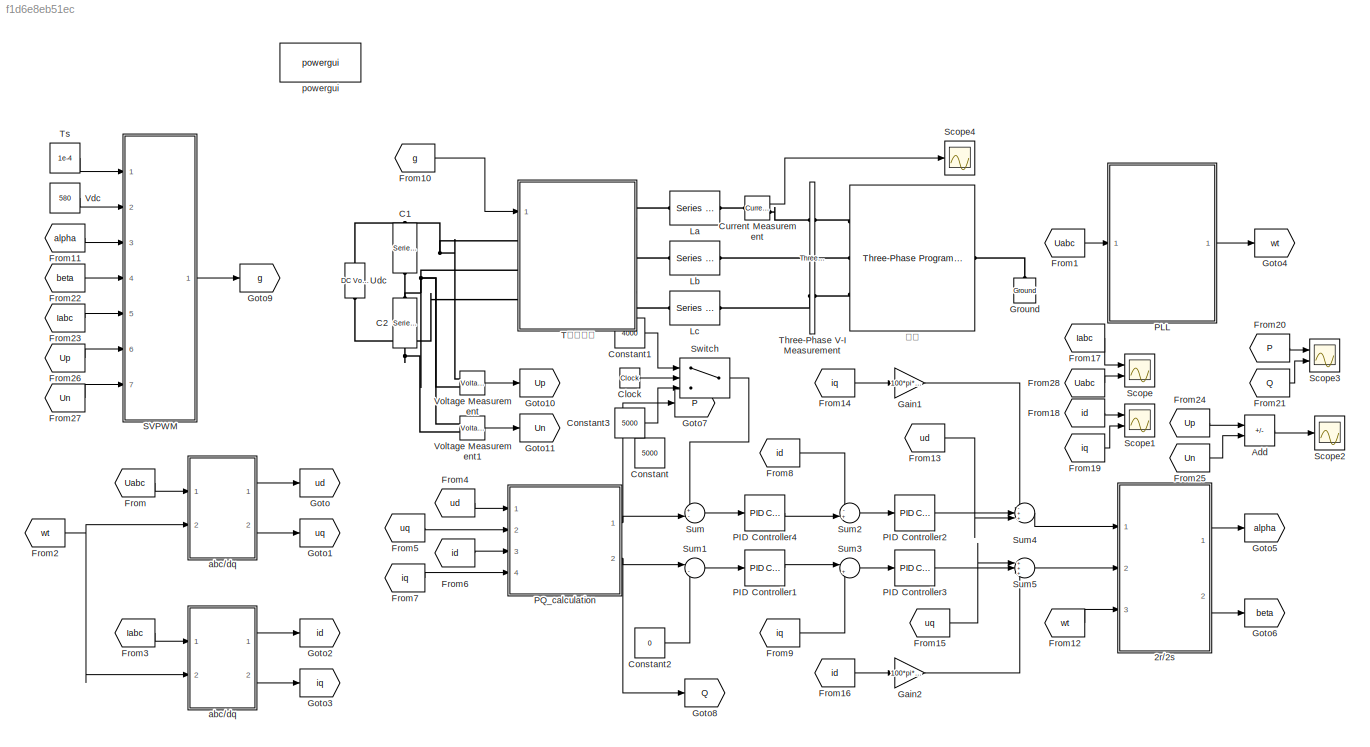
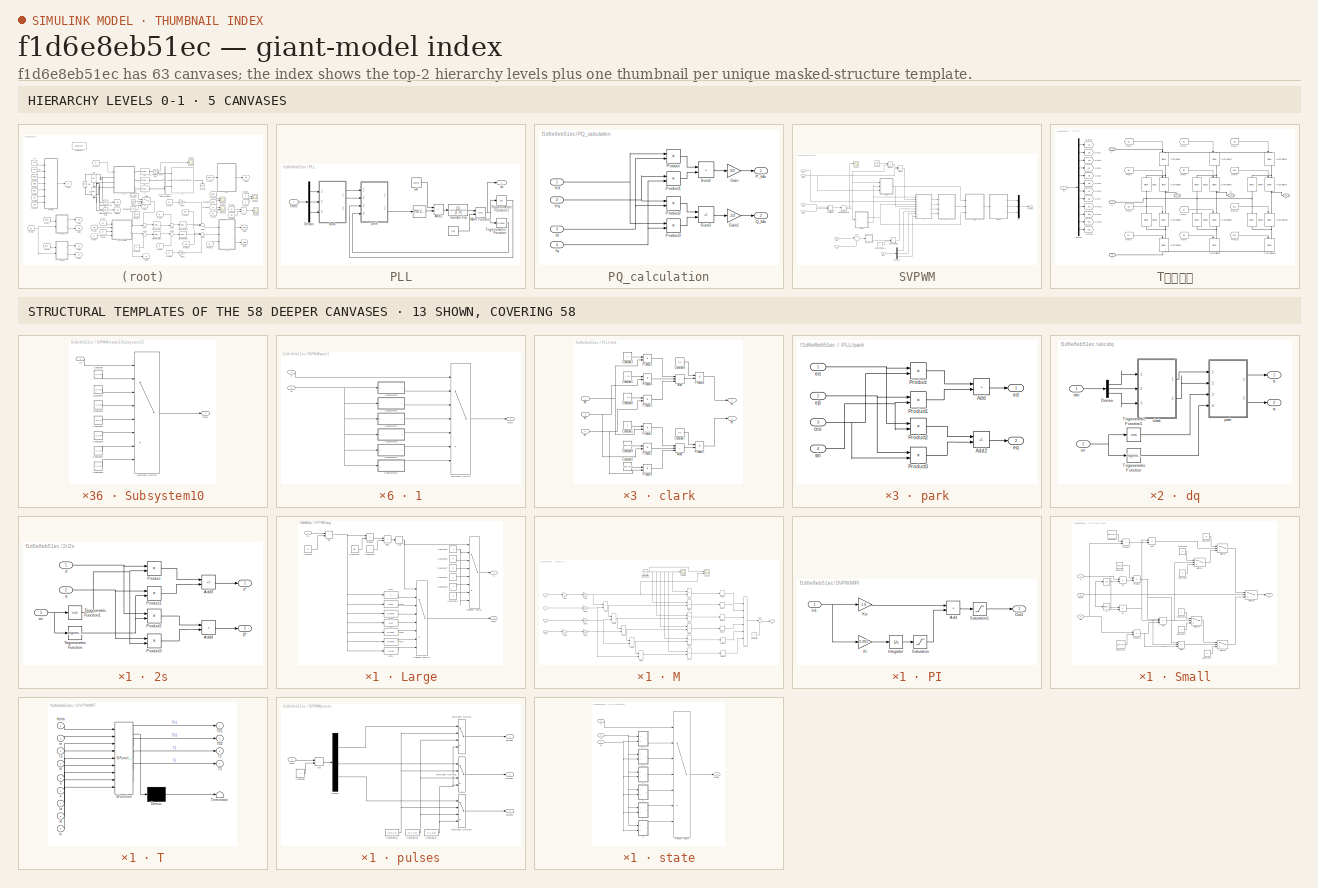
[diagram: thumbnail index - top-2 hierarchy levels (5 canvases) + 13 structural-template representatives of the remaining 58 canvases]
MODEL slx_f1d6e8eb51ec
KIND model
CONFIG AbsTol = auto
CONFIG EnableMultiTasking = off
CONFIG FixedStep = 1e-6
CONFIG MaxStep = auto
CONFIG MinStep = auto
CONFIG RelTol = 1e-3
CONFIG SampleTimeConstraint = Unconstrained
CONFIG Solver = ode8
CONFIG SolverName = ode8
CONFIG StartTime = 0.0
CONFIG StopTime = 0.1
BLOCK [SubSystem] 2r//2s
  Ports = [3, 2]
  RequestExecContextInheritance = off
BLOCK [Sum] 2r//2s/Add3
  IconShape = rectangular
  Inputs = +-
  Ports = [2, 1]
BLOCK [Sum] 2r//2s/Add4
  IconShape = rectangular
  Ports = [2, 1]
BLOCK [Product] 2r//2s/Product
  Ports = [2, 1]
BLOCK [Product] 2r//2s/Product1
  Ports = [2, 1]
BLOCK [Product] 2r//2s/Product2
  Ports = [2, 1]
BLOCK [Product] 2r//2s/Product3
  Ports = [2, 1]
BLOCK [Trigonometry] 2r//2s/Trigonometric Function
  Ports = [1, 1]
BLOCK [Trigonometry] 2r//2s/Trigonometric Function1
  Operator = cos
  Ports = [1, 1]
BLOCK [Inport] 2r//2s/d
BLOCK [Inport] 2r//2s/q
  Port = 2
BLOCK [Inport] 2r//2s/wt
  Port = 3
BLOCK [Outport] 2r//2s/α*
  VectorParamsAs1DForOutWhenUnconnected = off
BLOCK [Outport] 2r//2s/β*
  Port = 2
  VectorParamsAs1DForOutWhenUnconnected = off
BLOCK [Sum] Add
  IconShape = rectangular
  Inputs = +-
  Ports = [2, 1]
BLOCK [Reference] C1  REF=powerlib/Elements/Series RLC Branch
  NameLocation = left
  Ports = [0, 0, 0, 0, 0, 1, 1]
  SourceBlock = powerlib/Elements/Series RLC Branch
  SourceProductBaseCode = PS
  SourceType = Series RLC Branch
BLOCK [Reference] C2  REF=powerlib/Elements/Series RLC Branch
  NameLocation = left
  Ports = [0, 0, 0, 0, 0, 1, 1]
  SourceBlock = powerlib/Elements/Series RLC Branch
  SourceProductBaseCode = PS
  SourceType = Series RLC Branch
BLOCK [Clock] Clock
BLOCK [Constant] Constant
  Value = 5000
BLOCK [Constant] Constant1
  Value = 4000
BLOCK [Constant] Constant2
  Value = 0
BLOCK [Constant] Constant3
  Value = 5000
BLOCK [Reference] Current Measurement  REF=powerlib/Measurements/Current Measurement
  Ports = [0, 1, 0, 0, 0, 1, 1]
  SourceBlock = powerlib/Measurements/Current Measurement
  SourceProductBaseCode = PS
  SourceType = Current Measurement
  UserDataPersistent = on
BLOCK [From] From
  GotoTag = Uabc
  TagVisibility = global
BLOCK [From] From1
  GotoTag = Uabc
  TagVisibility = global
BLOCK [From] From10
  GotoTag = g
BLOCK [From] From11
  GotoTag = alpha
BLOCK [From] From12
  GotoTag = wt
BLOCK [From] From13
  GotoTag = ud
BLOCK [From] From14
  GotoTag = iq
BLOCK [From] From15
  GotoTag = uq
BLOCK [From] From16
  GotoTag = id
BLOCK [From] From17
  GotoTag = Iabc
  TagVisibility = global
BLOCK [From] From18
  GotoTag = id
BLOCK [From] From19
  GotoTag = iq
BLOCK [From] From2
  GotoTag = wt
BLOCK [From] From20
  GotoTag = P
BLOCK [From] From21
  GotoTag = Q
BLOCK [From] From22
  GotoTag = beta
BLOCK [From] From23
  GotoTag = Iabc
  TagVisibility = global
BLOCK [From] From24
  GotoTag = Up
BLOCK [From] From25
  GotoTag = Un
BLOCK [From] From26
  GotoTag = Up
BLOCK [From] From27
  GotoTag = Un
BLOCK [From] From28
  GotoTag = Uabc
  TagVisibility = global
BLOCK [From] From3
  GotoTag = Iabc
  TagVisibility = global
BLOCK [From] From4
  GotoTag = ud
BLOCK [From] From5
  GotoTag = uq
BLOCK [From] From6
  GotoTag = id
BLOCK [From] From7
  GotoTag = iq
BLOCK [From] From8
  GotoTag = id
BLOCK [From] From9
  GotoTag = iq
BLOCK [Gain] Gain1
  Gain = 100*pi*10e-3
BLOCK [Gain] Gain2
  Gain = 100*pi*10e-3
BLOCK [Goto] Goto
  GotoTag = ud
BLOCK [Goto] Goto1
  GotoTag = uq
BLOCK [Goto] Goto10
  GotoTag = Up
BLOCK [Goto] Goto11
  GotoTag = Un
BLOCK [Goto] Goto2
  GotoTag = id
BLOCK [Goto] Goto3
  GotoTag = iq
BLOCK [Goto] Goto4
  GotoTag = wt
BLOCK [Goto] Goto5
  GotoTag = alpha
BLOCK [Goto] Goto6
  GotoTag = beta
BLOCK [Goto] Goto7
  GotoTag = P
BLOCK [Goto] Goto8
  GotoTag = Q
BLOCK [Goto] Goto9
  GotoTag = g
BLOCK [Reference] Ground  REF=powerlib/Elements/Ground
  NameLocation = right
  Ports = [0, 0, 0, 0, 0, 1]
  SourceBlock = powerlib/Elements/Ground
  SourceProductBaseCode = PS
  SourceType = Ground
BLOCK [Reference] La  REF=powerlib/Elements/Series RLC Branch
  Ports = [0, 0, 0, 0, 0, 1, 1]
  SourceBlock = powerlib/Elements/Series RLC Branch
  SourceProductBaseCode = PS
  SourceType = Series RLC Branch
BLOCK [Reference] Lb  REF=powerlib/Elements/Series RLC Branch
  Ports = [0, 0, 0, 0, 0, 1, 1]
  SourceBlock = powerlib/Elements/Series RLC Branch
  SourceProductBaseCode = PS
  SourceType = Series RLC Branch
BLOCK [Reference] Lc  REF=powerlib/Elements/Series RLC Branch
  Ports = [0, 0, 0, 0, 0, 1, 1]
  SourceBlock = powerlib/Elements/Series RLC Branch
  SourceProductBaseCode = PS
  SourceType = Series RLC Branch
BLOCK [Reference] PID Controller1  REF=simulink/Continuous/PID Controller
  Ports = [1, 1]
  SourceBlock = simulink/Continuous/PID Controller
  SourceProductBaseCode = SL
  SourceType = PID 1dof
BLOCK [Reference] PID Controller2  REF=simulink/Continuous/PID Controller
  Ports = [1, 1]
  SourceBlock = simulink/Continuous/PID Controller
  SourceProductBaseCode = SL
  SourceType = PID 1dof
BLOCK [Reference] PID Controller3  REF=simulink/Continuous/PID Controller
  Ports = [1, 1]
  SourceBlock = simulink/Continuous/PID Controller
  SourceProductBaseCode = SL
  SourceType = PID 1dof
BLOCK [Reference] PID Controller4  REF=simulink/Continuous/PID Controller
  Ports = [1, 1]
  SourceBlock = simulink/Continuous/PID Controller
  SourceProductBaseCode = SL
  SourceType = PID 1dof
BLOCK [SubSystem] PLL
  Ports = [1, 1]
  RequestExecContextInheritance = off
BLOCK [Reference] PLL/   REF=simulink/Continuous/PID Controller
  Ports = [1, 1]
  SourceBlock = simulink/Continuous/PID Controller
  SourceProductBaseCode = SL
  SourceType = PID 1dof
BLOCK [Sum] PLL/Add1
  IconShape = rectangular
  Ports = [2, 1]
BLOCK [Demux] PLL/Demux
  Outputs = 3
  Ports = [1, 3]
BLOCK [Math] PLL/Math Function
  Operator = mod
  Ports = [2, 1]
  SignedPower = on
BLOCK [TransferFcn] PLL/Transfer Fcn
  Denominator = [1 0]
BLOCK [Trigonometry] PLL/Trigonometric Function
  Ports = [1, 1]
BLOCK [Trigonometry] PLL/Trigonometric Function1
  Operator = cos
  Ports = [1, 1]
BLOCK [SubSystem] PLL/clark
  Ports = [3, 2]
  RequestExecContextInheritance = off
BLOCK [Sum] PLL/clark/Add
  IconShape = rectangular
  Inputs = +++
  Ports = [3, 1]
BLOCK [Sum] PLL/clark/Add1
  IconShape = rectangular
  Inputs = +++
  Ports = [3, 1]
BLOCK [Constant] PLL/clark/Constant1
  Value = 0
BLOCK [Constant] PLL/clark/Constant2
  Value = -sqrt(3)/2
BLOCK [Constant] PLL/clark/Constant3
BLOCK [Constant] PLL/clark/Constant4
  Value = -1/2
BLOCK [Constant] PLL/clark/Constant5
  Value = -1/2
BLOCK [Constant] PLL/clark/Constant6
  Value = 2/3
BLOCK [Constant] PLL/clark/Constant7
  Value = 2/3
BLOCK [Constant] PLL/clark/Constant9
  Value = sqrt(3)/2
BLOCK [Product] PLL/clark/Product1
  Ports = [2, 1]
BLOCK [Product] PLL/clark/Product2
  Ports = [2, 1]
BLOCK [Product] PLL/clark/Product3
  Ports = [2, 1]
BLOCK [Product] PLL/clark/Product4
  Ports = [2, 1]
BLOCK [Product] PLL/clark/Product5
  Ports = [2, 1]
BLOCK [Product] PLL/clark/Product6
  Ports = [2, 1]
BLOCK [Product] PLL/clark/Product7
  Ports = [2, 1]
BLOCK [Product] PLL/clark/Product9
  Ports = [2, 1]
BLOCK [Inport] PLL/clark/ea
BLOCK [Inport] PLL/clark/eb
  Port = 2
BLOCK [Inport] PLL/clark/ec
  Port = 3
BLOCK [Outport] PLL/clark/eα
  VectorParamsAs1DForOutWhenUnconnected = off
BLOCK [Outport] PLL/clark/eβ
  Port = 2
  VectorParamsAs1DForOutWhenUnconnected = off
BLOCK [Inport] PLL/eabc
BLOCK [SubSystem] PLL/park
  Ports = [4, 2]
  RequestExecContextInheritance = off
BLOCK [Sum] PLL/park/Add
  IconShape = rectangular
  Ports = [2, 1]
BLOCK [Sum] PLL/park/Add2
  IconShape = rectangular
  Inputs = -+
  Ports = [2, 1]
BLOCK [Product] PLL/park/Product
  Ports = [2, 1]
BLOCK [Product] PLL/park/Product1
  Ports = [2, 1]
BLOCK [Product] PLL/park/Product2
  Ports = [2, 1]
BLOCK [Product] PLL/park/Product3
  Ports = [2, 1]
BLOCK [Inport] PLL/park/cos
  Port = 3
BLOCK [Outport] PLL/park/ed
  VectorParamsAs1DForOutWhenUnconnected = off
BLOCK [Outport] PLL/park/eq
  Port = 2
  VectorParamsAs1DForOutWhenUnconnected = off
BLOCK [Inport] PLL/park/eα
BLOCK [Inport] PLL/park/eβ
  Port = 2
BLOCK [Inport] PLL/park/sin
  Port = 4
BLOCK [Outport] PLL/wt
  VectorParamsAs1DForOutWhenUnconnected = off
BLOCK [Constant] PLL/ω0
  Value = 100*pi
BLOCK [SubSystem] PQ_calculation
  Ports = [4, 2]
  RequestExecContextInheritance = off
BLOCK [Gain] PQ_calculation/Gain
  Gain = 3/2
BLOCK [Gain] PQ_calculation/Gain1
  Gain = -3/2
BLOCK [Inport] PQ_calculation/Id
  Port = 3
BLOCK [Inport] PQ_calculation/Iq
  Port = 4
BLOCK [Outport] PQ_calculation/P_fdb
  VectorParamsAs1DForOutWhenUnconnected = off
BLOCK [Product] PQ_calculation/Product
  Ports = [2, 1]
BLOCK [Product] PQ_calculation/Product1
  Ports = [2, 1]
BLOCK [Product] PQ_calculation/Product2
  Ports = [2, 1]
BLOCK [Product] PQ_calculation/Product3
  Ports = [2, 1]
BLOCK [Outport] PQ_calculation/Q_fdb
  Port = 2
  VectorParamsAs1DForOutWhenUnconnected = off
BLOCK [Sum] PQ_calculation/Sum2
  IconShape = rectangular
  Ports = [2, 1]
BLOCK [Sum] PQ_calculation/Sum3
  IconShape = rectangular
  Inputs = +-
  Ports = [2, 1]
BLOCK [Inport] PQ_calculation/Vd
BLOCK [Inport] PQ_calculation/Vq
  Port = 2
BLOCK [SubSystem] SVPWM
  Ports = [7, 1]
  RequestExecContextInheritance = off
BLOCK [ComplexToMagnitudeAngle] SVPWM/Complex to Magnitude-Angle
  Ports = [1, 2]
BLOCK [Constant] SVPWM/Constant
  Value = sqrt(3)
BLOCK [Demux] SVPWM/Demux4
  Outputs = 3
  Ports = [1, 3]
BLOCK [Product] SVPWM/Divide
  Inputs = */
  Ports = [2, 1]
BLOCK [Inport] SVPWM/Iabc
  Port = 5
BLOCK [SubSystem] SVPWM/Large
  Ports = [1, 2]
  RequestExecContextInheritance = off
BLOCK [Sum] SVPWM/Large/Add
  IconShape = rectangular
  Ports = [2, 1]
BLOCK [Sum] SVPWM/Large/Add1
  IconShape = rectangular
  Ports = [2, 1]
BLOCK [Rounding] SVPWM/Large/Ceil
BLOCK [Constant] SVPWM/Large/Constant
  Value = pi
BLOCK [Constant] SVPWM/Large/Constant1
  Value = 3/pi
BLOCK [Constant] SVPWM/Large/Constant2
BLOCK [Constant] SVPWM/Large/Constant3
  Value = 2
BLOCK [Constant] SVPWM/Large/Constant4
  Value = 3
BLOCK [Constant] SVPWM/Large/Constant5
  Value = 4
BLOCK [Constant] SVPWM/Large/Constant6
  Value = 5
BLOCK [Constant] SVPWM/Large/Constant7
  Value = 6
BLOCK [Constant] SVPWM/Large/Constant8
BLOCK [Fcn] SVPWM/Large/Fcn1
  Expr = u-2*pi
BLOCK [Fcn] SVPWM/Large/Fcn2
  Expr = u
BLOCK [Fcn] SVPWM/Large/Fcn3
  Expr = u-pi/3
BLOCK [Fcn] SVPWM/Large/Fcn4
  Expr = u-2*pi/3
BLOCK [Fcn] SVPWM/Large/Fcn5
  Expr = u-pi
BLOCK [Fcn] SVPWM/Large/Fcn6
  Expr = u-4*pi/3
BLOCK [Fcn] SVPWM/Large/Fcn7
  Expr = u-5*pi/3
BLOCK [MultiPortSwitch] SVPWM/Large/Multiport Switch
  InputSameDT = off
  Inputs = 7
  Ports = [8, 1]
  SaturateOnIntegerOverflow = off
BLOCK [MultiPortSwitch] SVPWM/Large/Multiport Switch1
  InputSameDT = off
  Inputs = 7
  Ports = [8, 1]
  SaturateOnIntegerOverflow = off
BLOCK [Outport] SVPWM/Large/N
  VectorParamsAs1DForOutWhenUnconnected = off
BLOCK [Product] SVPWM/Large/Product
  Ports = [2, 1]
BLOCK [Outport] SVPWM/Large/theta'
  Port = 2
  VectorParamsAs1DForOutWhenUnconnected = off
BLOCK [Inport] SVPWM/Large/∠u
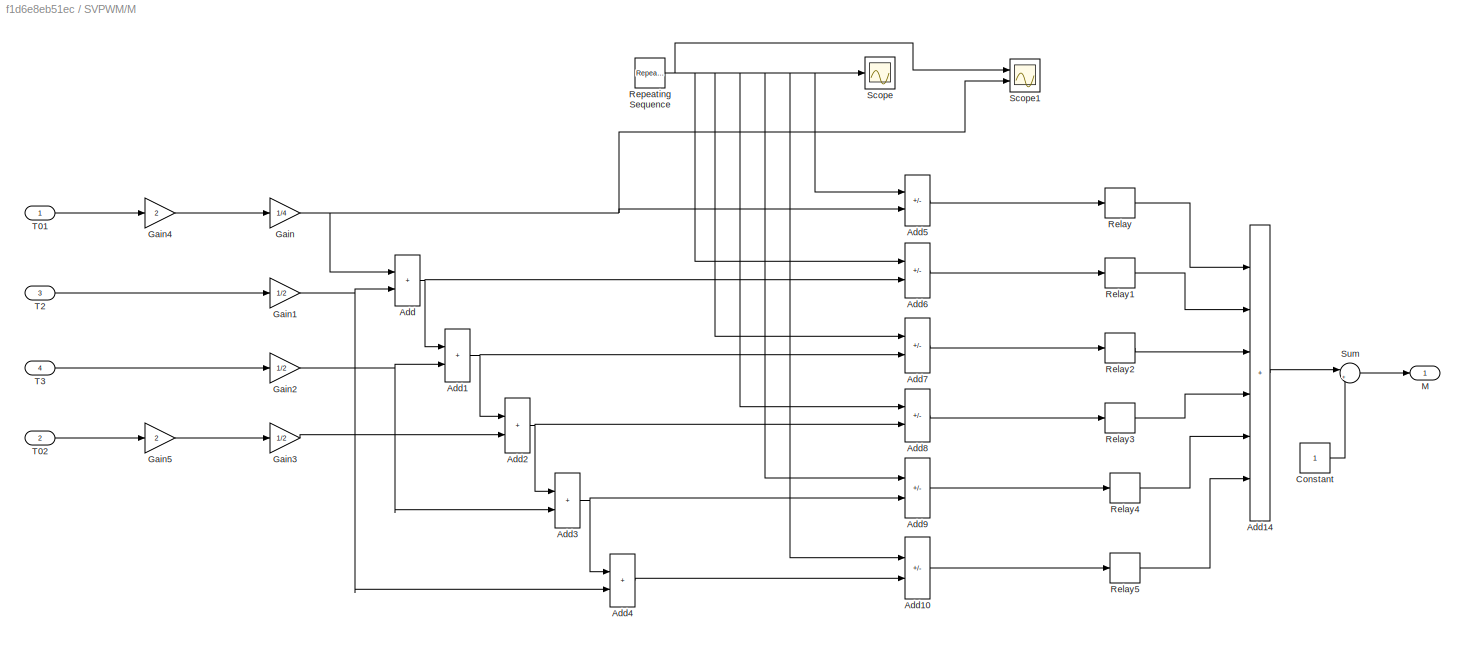
BLOCK [SubSystem] SVPWM/M
  Ports = [4, 1]
  RequestExecContextInheritance = off
BLOCK [Sum] SVPWM/M/Add
  IconShape = rectangular
  Ports = [2, 1]
BLOCK [Sum] SVPWM/M/Add1
  IconShape = rectangular
  Ports = [2, 1]
BLOCK [Sum] SVPWM/M/Add10
  IconShape = rectangular
  Inputs = +-
  Ports = [2, 1]
BLOCK [Sum] SVPWM/M/Add14
  IconShape = rectangular
  Inputs = ++++++
  Ports = [6, 1]
BLOCK [Sum] SVPWM/M/Add2
  IconShape = rectangular
  Ports = [2, 1]
BLOCK [Sum] SVPWM/M/Add3
  IconShape = rectangular
  Ports = [2, 1]
BLOCK [Sum] SVPWM/M/Add4
  IconShape = rectangular
  Ports = [2, 1]
BLOCK [Sum] SVPWM/M/Add5
  IconShape = rectangular
  Inputs = +-
  Ports = [2, 1]
BLOCK [Sum] SVPWM/M/Add6
  IconShape = rectangular
  Inputs = +-
  Ports = [2, 1]
BLOCK [Sum] SVPWM/M/Add7
  IconShape = rectangular
  Inputs = +-
  Ports = [2, 1]
BLOCK [Sum] SVPWM/M/Add8
  IconShape = rectangular
  Inputs = +-
  Ports = [2, 1]
BLOCK [Sum] SVPWM/M/Add9
  IconShape = rectangular
  Inputs = +-
  Ports = [2, 1]
BLOCK [Constant] SVPWM/M/Constant
BLOCK [Gain] SVPWM/M/Gain
  Gain = 1/4
BLOCK [Gain] SVPWM/M/Gain1
  Gain = 1/2
BLOCK [Gain] SVPWM/M/Gain2
  Gain = 1/2
BLOCK [Gain] SVPWM/M/Gain3
  Gain = 1/2
BLOCK [Gain] SVPWM/M/Gain4
  Gain = 2
BLOCK [Gain] SVPWM/M/Gain5
  Gain = 2
BLOCK [Outport] SVPWM/M/M
  VectorParamsAs1DForOutWhenUnconnected = off
BLOCK [Relay] SVPWM/M/Relay
BLOCK [Relay] SVPWM/M/Relay1
BLOCK [Relay] SVPWM/M/Relay2
BLOCK [Relay] SVPWM/M/Relay3
BLOCK [Relay] SVPWM/M/Relay4
BLOCK [Relay] SVPWM/M/Relay5
BLOCK [Reference] SVPWM/M/Repeating Sequence  REF=simulink/Sources/Repeating
Sequence
  Ports = [0, 1]
  SourceBlock = simulink/Sources/Repeating\nSequence
  SourceProductBaseCode = SL
  SourceType = Repeating table
BLOCK [Scope] SVPWM/M/Scope
  Floating = off
  NumInputPorts = 1
  Ports = [1]
  ScopeSpecificationString = C++SS(StrPVP('Location','[6, 40, 1372, 719]'),StrPVP('Open','off'),MxPVP('AxesTitles',54,'struct(''axes1'',''%<SignalLabel>'')'),StrPVP('YMin','0.00575'),StrPVP('YMax','0.0085'),StrPVP('SaveName','ScopeData7'),StrPVP('DataFormat','StructureWithTime'),StrPVP('LimitDataPoints','off'),StrPVP('BlockParamSampleTime','0'),StrPVP('Decimation','1'),StrPVP('BlockParamSampleInput','off'))
BLOCK [Scope] SVPWM/M/Scope1
  Floating = off
  NumInputPorts = 2
  Ports = [2]
  ScopeSpecificationString = Simulink.scopes.TimeScopeBlockCfg('CurrentConfiguration', extmgr.ConfigurationSet(extmgr.Configuration('Core','General UI',true),extmgr.Configuration('Core','Source UI',true),extmgr.Configuration('Sources','WiredSimulink',true,'DataLoggingVariableName','ScopeData1','DataLoggingSaveFormat','StructureWithTime','DataLoggingDecimation','1','DataLoggingDecimateData',true),extmgr.Configuration('Visuals'...<+1707ch>
BLOCK [Sum] SVPWM/M/Sum
  Inputs = |++
  Ports = [2, 1]
BLOCK [Inport] SVPWM/M/T01
BLOCK [Inport] SVPWM/M/T02
  Port = 2
BLOCK [Inport] SVPWM/M/T2
  Port = 3
BLOCK [Inport] SVPWM/M/T3
  Port = 4
BLOCK [ManualSwitch] SVPWM/Manual Switch
  CurrentSetting = 0
BLOCK [Mux] SVPWM/Mux
  DisplayOption = bar
  Inputs = 3
  Ports = [3, 1]
BLOCK [SubSystem] SVPWM/PI
  Ports = [1, 1]
  RequestExecContextInheritance = off
BLOCK [Sum] SVPWM/PI/Add
  IconShape = rectangular
  Ports = [2, 1]
BLOCK [Inport] SVPWM/PI/In1
BLOCK [Integrator] SVPWM/PI/Integrator
  Ports = [1, 1]
BLOCK [Gain] SVPWM/PI/Ki
  Gain = 0.001
BLOCK [Gain] SVPWM/PI/Kp
  Gain = 1.6
BLOCK [Outport] SVPWM/PI/Out1
  VectorParamsAs1DForOutWhenUnconnected = off
BLOCK [Saturate] SVPWM/PI/Saturation
BLOCK [Saturate] SVPWM/PI/Saturation1
BLOCK [Product] SVPWM/Product
  Ports = [2, 1]
BLOCK [RealImagToComplex] SVPWM/Real-Imag to Complex
  Ports = [2, 1]
BLOCK [Outport] SVPWM/SVPWM
  VectorParamsAs1DForOutWhenUnconnected = off
BLOCK [Scope] SVPWM/Scope
  Floating = off
  NumInputPorts = 1
  Ports = [1]
  ScopeSpecificationString = Simulink.scopes.TimeScopeBlockCfg('CurrentConfiguration', extmgr.ConfigurationSet(extmgr.Configuration('Core','General UI',true),extmgr.Configuration('Core','Source UI',true),extmgr.Configuration('Sources','WiredSimulink',true),extmgr.Configuration('Visuals','Time Domain',true,'SerializedDisplays',{struct('MinYLimReal','311.12698372208052','MaxYLimReal','311.12698372208126','YLabelReal','','MinYLi...<+1492ch>
BLOCK [SubSystem] SVPWM/Small
  Ports = [3, 1]
  RequestExecContextInheritance = off
BLOCK [Trigonometry] SVPWM/Small/ 
  Operator = cos
  Ports = [1, 1]
BLOCK [Trigonometry] SVPWM/Small/ 2
  Ports = [1, 1]
BLOCK [Sum] SVPWM/Small/Add
  IconShape = rectangular
  Inputs = ++-
  Ports = [3, 1]
BLOCK [Sum] SVPWM/Small/Add1
  IconShape = rectangular
  Inputs = -++
  Ports = [3, 1]
BLOCK [Sum] SVPWM/Small/Add2
  IconShape = rectangular
  Inputs = +-
  Ports = [2, 1]
BLOCK [Constant] SVPWM/Small/Constant
  Value = sqrt(3)
BLOCK [Constant] SVPWM/Small/Constant1
  Value = sqrt(3)/3
BLOCK [Constant] SVPWM/Small/Constant2
BLOCK [Constant] SVPWM/Small/Constant3
  Value = 3
BLOCK [Constant] SVPWM/Small/Constant4
  Value = 5
BLOCK [Constant] SVPWM/Small/Constant5
  Value = 2
BLOCK [Constant] SVPWM/Small/Constant6
  Value = 4
BLOCK [Constant] SVPWM/Small/Constant7
  Value = 6
BLOCK [Constant] SVPWM/Small/Constant8
  Value = sqrt(3)/6
BLOCK [Product] SVPWM/Small/Product
  Ports = [2, 1]
BLOCK [Product] SVPWM/Small/Product1
  Ports = [2, 1]
BLOCK [Product] SVPWM/Small/Product2
  Ports = [2, 1]
BLOCK [Switch] SVPWM/Small/Switch1
  InputSameDT = off
  SaturateOnIntegerOverflow = off
  Threshold = pi/6
BLOCK [Switch] SVPWM/Small/Switch2
  InputSameDT = off
  SaturateOnIntegerOverflow = off
BLOCK [Switch] SVPWM/Small/Switch3
  InputSameDT = off
  SaturateOnIntegerOverflow = off
BLOCK [Switch] SVPWM/Small/Switch4
  InputSameDT = off
  SaturateOnIntegerOverflow = off
BLOCK [Switch] SVPWM/Small/Switch5
  InputSameDT = off
  SaturateOnIntegerOverflow = off
BLOCK [Inport] SVPWM/Small/Udc
  Port = 3
BLOCK [Product] SVPWM/Small/Vα
  Ports = [2, 1]
BLOCK [Product] SVPWM/Small/Vβ
  Ports = [2, 1]
BLOCK [Outport] SVPWM/Small/n
  VectorParamsAs1DForOutWhenUnconnected = off
BLOCK [Inport] SVPWM/Small/theta'
  Port = 2
BLOCK [Inport] SVPWM/Small/u
BLOCK [Sum] SVPWM/Sum
  Inputs = |-+
  Ports = [2, 1]
BLOCK [SubSystem] SVPWM/T
  ErrorFcn = Stateflow.Translate.translate
  PermitHierarchicalResolution = ExplicitOnly
  Ports = [9, 4]
  RequestExecContextInheritance = off
  SFBlockType = MATLAB Function
  TreatAsAtomicUnit = on
BLOCK [Demux] SVPWM/T/ Demux 
  Outputs = 1
  Ports = [1, 1]
BLOCK [S-Function] SVPWM/T/ SFunction 
  EnableBusSupport = on
  FunctionName = sf_sfun
  PortCounts = [9 5]
  Ports = [9, 5]
  SFcnIsStateOwnerBlock = off
  SFunctionDeploymentMode = off
  Tag = Stateflow S-Function 3
BLOCK [Terminator] SVPWM/T/ Terminator 
BLOCK [Inport] SVPWM/T/Ia
  Port = 7
BLOCK [Inport] SVPWM/T/Ib
  Port = 8
BLOCK [Inport] SVPWM/T/Ic
  Port = 9
BLOCK [Inport] SVPWM/T/N
  Port = 4
BLOCK [Outport] SVPWM/T/T01
  VectorParamsAs1DForOutWhenUnconnected = off
BLOCK [Outport] SVPWM/T/T02
  Port = 2
  VectorParamsAs1DForOutWhenUnconnected = off
BLOCK [Outport] SVPWM/T/T2
  Port = 3
  VectorParamsAs1DForOutWhenUnconnected = off
BLOCK [Outport] SVPWM/T/T3
  Port = 4
  VectorParamsAs1DForOutWhenUnconnected = off
BLOCK [Inport] SVPWM/T/Ts
  Port = 3
BLOCK [Inport] SVPWM/T/k
  Port = 6
BLOCK [Inport] SVPWM/T/m
  Port = 2
BLOCK [Inport] SVPWM/T/n
  Port = 5
BLOCK [Inport] SVPWM/T/theta
BLOCK [Inport] SVPWM/Ts
BLOCK [Inport] SVPWM/Udc
  Port = 2
BLOCK [Inport] SVPWM/Un
  Port = 7
BLOCK [Inport] SVPWM/Up
  Port = 6
BLOCK [Constant] SVPWM/no bus balance
  Value = 0
BLOCK [SubSystem] SVPWM/pulses
  Ports = [1, 3]
  RequestExecContextInheritance = off
BLOCK [Sum] SVPWM/pulses/Add
  IconShape = rectangular
  Ports = [2, 1]
BLOCK [Constant] SVPWM/pulses/Constant
BLOCK [Constant] SVPWM/pulses/Constant11
  Value = [1 1 0 0]
BLOCK [Constant] SVPWM/pulses/Constant12
  Value = [0 0 1 1]
BLOCK [Constant] SVPWM/pulses/Constant13
  Value = [0 1 1 0]
BLOCK [Demux] SVPWM/pulses/Demux
  Outputs = 3
  Ports = [1, 3]
BLOCK [MultiPortSwitch] SVPWM/pulses/Multiport Switch
  InputSameDT = off
  Ports = [4, 1]
  SaturateOnIntegerOverflow = off
BLOCK [MultiPortSwitch] SVPWM/pulses/Multiport Switch1
  InputSameDT = off
  Ports = [4, 1]
  SaturateOnIntegerOverflow = off
BLOCK [MultiPortSwitch] SVPWM/pulses/Multiport Switch2
  InputSameDT = off
  Ports = [4, 1]
  SaturateOnIntegerOverflow = off
BLOCK [Outport] SVPWM/pulses/pulses1
  VectorParamsAs1DForOutWhenUnconnected = off
BLOCK [Outport] SVPWM/pulses/pulses2
  Port = 2
  VectorParamsAs1DForOutWhenUnconnected = off
BLOCK [Outport] SVPWM/pulses/pulses3
  Port = 3
  VectorParamsAs1DForOutWhenUnconnected = off
BLOCK [Inport] SVPWM/pulses/state
BLOCK [SubSystem] SVPWM/state
  Ports = [3, 1]
  RequestExecContextInheritance = off
BLOCK [SubSystem] SVPWM/state/1
  Ports = [2, 1]
  RequestExecContextInheritance = off
BLOCK [Inport] SVPWM/state/1/M
  Port = 2
BLOCK [MultiPortSwitch] SVPWM/state/1/Multiport Switch
  InputSameDT = off
  Inputs = 6
  Ports = [7, 1]
  SaturateOnIntegerOverflow = off
BLOCK [SubSystem] SVPWM/state/1/Subsystem10
  Ports = [1, 1]
  RequestExecContextInheritance = off
BLOCK [Constant] SVPWM/state/1/Subsystem10/Constant
  Value = [1 1 0]
BLOCK [Constant] SVPWM/state/1/Subsystem10/Constant1
  Value = [2 1 0]
BLOCK [Constant] SVPWM/state/1/Subsystem10/Constant2
  Value = [2 2 0]
BLOCK [Constant] SVPWM/state/1/Subsystem10/Constant3
  Value = [2 2 1]
BLOCK [Constant] SVPWM/state/1/Subsystem10/Constant4
  Value = [2 1 0]
BLOCK [Constant] SVPWM/state/1/Subsystem10/Constant5
  Value = [2 2 0]
BLOCK [Constant] SVPWM/state/1/Subsystem10/Constant6
  Value = [1 1 0]
BLOCK [Inport] SVPWM/state/1/Subsystem10/M
BLOCK [MultiPortSwitch] SVPWM/state/1/Subsystem10/Multiport Switch
  InputSameDT = off
  Inputs = 7
  Ports = [8, 1]
  SaturateOnIntegerOverflow = off
BLOCK [Outport] SVPWM/state/1/Subsystem10/state
  VectorParamsAs1DForOutWhenUnconnected = off
BLOCK [SubSystem] SVPWM/state/1/Subsystem5
  Ports = [1, 1]
  RequestExecContextInheritance = off
BLOCK [Constant] SVPWM/state/1/Subsystem5/Constant
  Value = [1 0 0]
BLOCK [Constant] SVPWM/state/1/Subsystem5/Constant1
  Value = [1 1 0]
BLOCK [Constant] SVPWM/state/1/Subsystem5/Constant2
  Value = [1 1 1]
BLOCK [Constant] SVPWM/state/1/Subsystem5/Constant3
  Value = [2 1 1]
BLOCK [Constant] SVPWM/state/1/Subsystem5/Constant4
  Value = [1 1 0]
BLOCK [Constant] SVPWM/state/1/Subsystem5/Constant5
  Value = [1 1 1]
BLOCK [Constant] SVPWM/state/1/Subsystem5/Constant6
  Value = [1 0 0]
BLOCK [Inport] SVPWM/state/1/Subsystem5/M
BLOCK [MultiPortSwitch] SVPWM/state/1/Subsystem5/Multiport Switch
  InputSameDT = off
  Inputs = 7
  Ports = [8, 1]
  SaturateOnIntegerOverflow = off
BLOCK [Outport] SVPWM/state/1/Subsystem5/state
  VectorParamsAs1DForOutWhenUnconnected = off
BLOCK [SubSystem] SVPWM/state/1/Subsystem6
  Ports = [1, 1]
  RequestExecContextInheritance = off
BLOCK [Constant] SVPWM/state/1/Subsystem6/Constant
  Value = [1 1 0]
BLOCK [Constant] SVPWM/state/1/Subsystem6/Constant1
  Value = [1 1 1]
BLOCK [Constant] SVPWM/state/1/Subsystem6/Constant2
  Value = [2 1 1]
BLOCK [Constant] SVPWM/state/1/Subsystem6/Constant3
  Value = [2 2 1]
BLOCK [Constant] SVPWM/state/1/Subsystem6/Constant4
  Value = [1 1 1]
BLOCK [Constant] SVPWM/state/1/Subsystem6/Constant5
  Value = [2 1 1]
BLOCK [Constant] SVPWM/state/1/Subsystem6/Constant6
  Value = [1 1 0]
BLOCK [Inport] SVPWM/state/1/Subsystem6/M
BLOCK [MultiPortSwitch] SVPWM/state/1/Subsystem6/Multiport Switch
  InputSameDT = off
  Inputs = 7
  Ports = [8, 1]
  SaturateOnIntegerOverflow = off
BLOCK [Outport] SVPWM/state/1/Subsystem6/state
  VectorParamsAs1DForOutWhenUnconnected = off
BLOCK [SubSystem] SVPWM/state/1/Subsystem7
  Ports = [1, 1]
  RequestExecContextInheritance = off
BLOCK [Constant] SVPWM/state/1/Subsystem7/Constant
  Value = [1 0 0]
BLOCK [Constant] SVPWM/state/1/Subsystem7/Constant1
  Value = [1 1 0]
BLOCK [Constant] SVPWM/state/1/Subsystem7/Constant2
  Value = [2 1 0]
BLOCK [Constant] SVPWM/state/1/Subsystem7/Constant3
  Value = [2 1 1]
BLOCK [Constant] SVPWM/state/1/Subsystem7/Constant4
  Value = [1 1 0]
BLOCK [Constant] SVPWM/state/1/Subsystem7/Constant5
  Value = [2 1 0]
BLOCK [Constant] SVPWM/state/1/Subsystem7/Constant6
  Value = [1 0 0]
BLOCK [Inport] SVPWM/state/1/Subsystem7/M
BLOCK [MultiPortSwitch] SVPWM/state/1/Subsystem7/Multiport Switch
  InputSameDT = off
  Inputs = 7
  Ports = [8, 1]
  SaturateOnIntegerOverflow = off
BLOCK [Outport] SVPWM/state/1/Subsystem7/state
  VectorParamsAs1DForOutWhenUnconnected = off
BLOCK [SubSystem] SVPWM/state/1/Subsystem8
  Ports = [1, 1]
  RequestExecContextInheritance = off
BLOCK [Constant] SVPWM/state/1/Subsystem8/Constant
  Value = [1 1 0]
BLOCK [Constant] SVPWM/state/1/Subsystem8/Constant1
  Value = [2 1 0]
BLOCK [Constant] SVPWM/state/1/Subsystem8/Constant2
  Value = [2 1 1]
BLOCK [Constant] SVPWM/state/1/Subsystem8/Constant3
  Value = [2 2 1]
BLOCK [Constant] SVPWM/state/1/Subsystem8/Constant4
  Value = [2 1 0]
BLOCK [Constant] SVPWM/state/1/Subsystem8/Constant5
  Value = [2 1 1]
BLOCK [Constant] SVPWM/state/1/Subsystem8/Constant6
  Value = [1 1 0]
BLOCK [Inport] SVPWM/state/1/Subsystem8/M
BLOCK [MultiPortSwitch] SVPWM/state/1/Subsystem8/Multiport Switch
  InputSameDT = off
  Inputs = 7
  Ports = [8, 1]
  SaturateOnIntegerOverflow = off
BLOCK [Outport] SVPWM/state/1/Subsystem8/state
  VectorParamsAs1DForOutWhenUnconnected = off
BLOCK [SubSystem] SVPWM/state/1/Subsystem9
  Ports = [1, 1]
  RequestExecContextInheritance = off
BLOCK [Constant] SVPWM/state/1/Subsystem9/Constant
  Value = [1 0 0]
BLOCK [Constant] SVPWM/state/1/Subsystem9/Constant1
  Value = [2 0 0]
BLOCK [Constant] SVPWM/state/1/Subsystem9/Constant2
  Value = [2 1 0]
BLOCK [Constant] SVPWM/state/1/Subsystem9/Constant3
  Value = [2 1 1]
BLOCK [Constant] SVPWM/state/1/Subsystem9/Constant4
  Value = [2 0 0]
BLOCK [Constant] SVPWM/state/1/Subsystem9/Constant5
  Value = [2 1 0]
BLOCK [Constant] SVPWM/state/1/Subsystem9/Constant6
  Value = [1 0 0]
BLOCK [Inport] SVPWM/state/1/Subsystem9/M
BLOCK [MultiPortSwitch] SVPWM/state/1/Subsystem9/Multiport Switch
  InputSameDT = off
  Inputs = 7
  Ports = [8, 1]
  SaturateOnIntegerOverflow = off
BLOCK [Outport] SVPWM/state/1/Subsystem9/state
  VectorParamsAs1DForOutWhenUnconnected = off
BLOCK [Inport] SVPWM/state/1/n
BLOCK [Outport] SVPWM/state/1/state
  VectorParamsAs1DForOutWhenUnconnected = off
BLOCK [SubSystem] SVPWM/state/2
  Ports = [2, 1]
  RequestExecContextInheritance = off
BLOCK [Inport] SVPWM/state/2/M
  Port = 2
BLOCK [MultiPortSwitch] SVPWM/state/2/Multiport Switch
  InputSameDT = off
  Inputs = 6
  Ports = [7, 1]
  SaturateOnIntegerOverflow = off
BLOCK [SubSystem] SVPWM/state/2/Subsystem10
  Ports = [1, 1]
  RequestExecContextInheritance = off
BLOCK [Constant] SVPWM/state/2/Subsystem10/Constant
  Value = [0 1 0]
BLOCK [Constant] SVPWM/state/2/Subsystem10/Constant1
  Value = [0 2 0]
BLOCK [Constant] SVPWM/state/2/Subsystem10/Constant2
  Value = [1 2 0]
BLOCK [Constant] SVPWM/state/2/Subsystem10/Constant3
  Value = [1 2 1]
BLOCK [Constant] SVPWM/state/2/Subsystem10/Constant4
  Value = [0 2 0]
BLOCK [Constant] SVPWM/state/2/Subsystem10/Constant5
  Value = [1 2 0]
BLOCK [Constant] SVPWM/state/2/Subsystem10/Constant6
  Value = [0 1 0]
BLOCK [Inport] SVPWM/state/2/Subsystem10/M
BLOCK [MultiPortSwitch] SVPWM/state/2/Subsystem10/Multiport Switch
  InputSameDT = off
  Inputs = 7
  Ports = [8, 1]
  SaturateOnIntegerOverflow = off
BLOCK [Outport] SVPWM/state/2/Subsystem10/state
  VectorParamsAs1DForOutWhenUnconnected = off
BLOCK [SubSystem] SVPWM/state/2/Subsystem5
  Ports = [1, 1]
  RequestExecContextInheritance = off
BLOCK [Constant] SVPWM/state/2/Subsystem5/Constant
  Value = [1 1 0]
BLOCK [Constant] SVPWM/state/2/Subsystem5/Constant1
  Value = [1 1 1]
BLOCK [Constant] SVPWM/state/2/Subsystem5/Constant2
  Value = [1 2 1]
BLOCK [Constant] SVPWM/state/2/Subsystem5/Constant3
  Value = [2 2 1]
BLOCK [Constant] SVPWM/state/2/Subsystem5/Constant4
  Value = [1 1 1]
BLOCK [Constant] SVPWM/state/2/Subsystem5/Constant5
  Value = [1 2 1]
BLOCK [Constant] SVPWM/state/2/Subsystem5/Constant6
  Value = [1 1 0]
BLOCK [Inport] SVPWM/state/2/Subsystem5/M
BLOCK [MultiPortSwitch] SVPWM/state/2/Subsystem5/Multiport Switch
  InputSameDT = off
  Inputs = 7
  Ports = [8, 1]
  SaturateOnIntegerOverflow = off
BLOCK [Outport] SVPWM/state/2/Subsystem5/state
  VectorParamsAs1DForOutWhenUnconnected = off
BLOCK [SubSystem] SVPWM/state/2/Subsystem6
  Ports = [1, 1]
  RequestExecContextInheritance = off
BLOCK [Constant] SVPWM/state/2/Subsystem6/Constant
  Value = [0 1 0]
BLOCK [Constant] SVPWM/state/2/Subsystem6/Constant1
  Value = [1 1 0]
BLOCK [Constant] SVPWM/state/2/Subsystem6/Constant2
  Value = [1 1 1]
BLOCK [Constant] SVPWM/state/2/Subsystem6/Constant3
  Value = [1 2 1]
BLOCK [Constant] SVPWM/state/2/Subsystem6/Constant4
  Value = [1 1 0]
BLOCK [Constant] SVPWM/state/2/Subsystem6/Constant5
  Value = [1 1 1]
BLOCK [Constant] SVPWM/state/2/Subsystem6/Constant6
  Value = [0 1 0]
BLOCK [Inport] SVPWM/state/2/Subsystem6/M
BLOCK [MultiPortSwitch] SVPWM/state/2/Subsystem6/Multiport Switch
  InputSameDT = off
  Inputs = 7
  Ports = [8, 1]
  SaturateOnIntegerOverflow = off
BLOCK [Outport] SVPWM/state/2/Subsystem6/state
  VectorParamsAs1DForOutWhenUnconnected = off
BLOCK [SubSystem] SVPWM/state/2/Subsystem7
  Ports = [1, 1]
  RequestExecContextInheritance = off
BLOCK [Constant] SVPWM/state/2/Subsystem7/Constant
  Value = [1 1 0]
BLOCK [Constant] SVPWM/state/2/Subsystem7/Constant1
  Value = [1 2 0]
BLOCK [Constant] SVPWM/state/2/Subsystem7/Constant2
  Value = [1 2 1]
BLOCK [Constant] SVPWM/state/2/Subsystem7/Constant3
  Value = [2 2 1]
BLOCK [Constant] SVPWM/state/2/Subsystem7/Constant4
  Value = [1 2 0]
BLOCK [Constant] SVPWM/state/2/Subsystem7/Constant5
  Value = [1 2 1]
BLOCK [Constant] SVPWM/state/2/Subsystem7/Constant6
  Value = [1 1 0]
BLOCK [Inport] SVPWM/state/2/Subsystem7/M
BLOCK [MultiPortSwitch] SVPWM/state/2/Subsystem7/Multiport Switch
  InputSameDT = off
  Inputs = 7
  Ports = [8, 1]
  SaturateOnIntegerOverflow = off
BLOCK [Outport] SVPWM/state/2/Subsystem7/state
  VectorParamsAs1DForOutWhenUnconnected = off
BLOCK [SubSystem] SVPWM/state/2/Subsystem8
  Ports = [1, 1]
  RequestExecContextInheritance = off
BLOCK [Constant] SVPWM/state/2/Subsystem8/Constant
  Value = [0 1 0]
BLOCK [Constant] SVPWM/state/2/Subsystem8/Constant1
  Value = [1 1 0]
BLOCK [Constant] SVPWM/state/2/Subsystem8/Constant2
  Value = [1 2 0]
BLOCK [Constant] SVPWM/state/2/Subsystem8/Constant3
  Value = [1 2 1]
BLOCK [Constant] SVPWM/state/2/Subsystem8/Constant4
  Value = [1 1 0]
BLOCK [Constant] SVPWM/state/2/Subsystem8/Constant5
  Value = [1 2 0]
BLOCK [Constant] SVPWM/state/2/Subsystem8/Constant6
  Value = [0 1 0]
BLOCK [Inport] SVPWM/state/2/Subsystem8/M
BLOCK [MultiPortSwitch] SVPWM/state/2/Subsystem8/Multiport Switch
  InputSameDT = off
  Inputs = 7
  Ports = [8, 1]
  SaturateOnIntegerOverflow = off
BLOCK [Outport] SVPWM/state/2/Subsystem8/state
  VectorParamsAs1DForOutWhenUnconnected = off
BLOCK [SubSystem] SVPWM/state/2/Subsystem9
  Ports = [1, 1]
  RequestExecContextInheritance = off
BLOCK [Constant] SVPWM/state/2/Subsystem9/Constant
  Value = [1 1 0]
BLOCK [Constant] SVPWM/state/2/Subsystem9/Constant1
  Value = [1 2 0]
BLOCK [Constant] SVPWM/state/2/Subsystem9/Constant2
  Value = [2 2 0]
BLOCK [Constant] SVPWM/state/2/Subsystem9/Constant3
  Value = [2 2 1]
BLOCK [Constant] SVPWM/state/2/Subsystem9/Constant4
  Value = [1 2 0]
BLOCK [Constant] SVPWM/state/2/Subsystem9/Constant5
  Value = [2 2 0]
BLOCK [Constant] SVPWM/state/2/Subsystem9/Constant6
  Value = [1 1 0]
BLOCK [Inport] SVPWM/state/2/Subsystem9/M
BLOCK [MultiPortSwitch] SVPWM/state/2/Subsystem9/Multiport Switch
  InputSameDT = off
  Inputs = 7
  Ports = [8, 1]
  SaturateOnIntegerOverflow = off
BLOCK [Outport] SVPWM/state/2/Subsystem9/state
  VectorParamsAs1DForOutWhenUnconnected = off
BLOCK [Inport] SVPWM/state/2/n
BLOCK [Outport] SVPWM/state/2/state
  VectorParamsAs1DForOutWhenUnconnected = off
BLOCK [SubSystem] SVPWM/state/3
  Ports = [2, 1]
  RequestExecContextInheritance = off
BLOCK [Inport] SVPWM/state/3/M
  Port = 2
BLOCK [MultiPortSwitch] SVPWM/state/3/Multiport Switch
  InputSameDT = off
  Inputs = 6
  Ports = [7, 1]
  SaturateOnIntegerOverflow = off
BLOCK [SubSystem] SVPWM/state/3/Subsystem10
  Ports = [1, 1]
  RequestExecContextInheritance = off
BLOCK [Constant] SVPWM/state/3/Subsystem10/Constant
  Value = [0 1 1]
BLOCK [Constant] SVPWM/state/3/Subsystem10/Constant1
  Value = [0 2 1]
BLOCK [Constant] SVPWM/state/3/Subsystem10/Constant2
  Value = [0 2 2]
BLOCK [Constant] SVPWM/state/3/Subsystem10/Constant3
  Value = [1 2 2]
BLOCK [Constant] SVPWM/state/3/Subsystem10/Constant4
  Value = [0 2 1]
BLOCK [Constant] SVPWM/state/3/Subsystem10/Constant5
  Value = [0 2 2]
BLOCK [Constant] SVPWM/state/3/Subsystem10/Constant6
  Value = [0 1 1]
BLOCK [Inport] SVPWM/state/3/Subsystem10/M
BLOCK [MultiPortSwitch] SVPWM/state/3/Subsystem10/Multiport Switch
  InputSameDT = off
  Inputs = 7
  Ports = [8, 1]
  SaturateOnIntegerOverflow = off
BLOCK [Outport] SVPWM/state/3/Subsystem10/state
  VectorParamsAs1DForOutWhenUnconnected = off
BLOCK [SubSystem] SVPWM/state/3/Subsystem5
  Ports = [1, 1]
  RequestExecContextInheritance = off
BLOCK [Constant] SVPWM/state/3/Subsystem5/Constant
  Value = [0 1 0]
BLOCK [Constant] SVPWM/state/3/Subsystem5/Constant1
  Value = [0 1 1]
BLOCK [Constant] SVPWM/state/3/Subsystem5/Constant2
  Value = [1 1 1]
BLOCK [Constant] SVPWM/state/3/Subsystem5/Constant3
  Value = [1 2 1]
BLOCK [Constant] SVPWM/state/3/Subsystem5/Constant4
  Value = [0 1 1]
BLOCK [Constant] SVPWM/state/3/Subsystem5/Constant5
  Value = [1 1 1]
BLOCK [Constant] SVPWM/state/3/Subsystem5/Constant6
  Value = [0 1 0]
BLOCK [Inport] SVPWM/state/3/Subsystem5/M
BLOCK [MultiPortSwitch] SVPWM/state/3/Subsystem5/Multiport Switch
  InputSameDT = off
  Inputs = 7
  Ports = [8, 1]
  SaturateOnIntegerOverflow = off
BLOCK [Outport] SVPWM/state/3/Subsystem5/state
  VectorParamsAs1DForOutWhenUnconnected = off
BLOCK [SubSystem] SVPWM/state/3/Subsystem6
  Ports = [1, 1]
  RequestExecContextInheritance = off
BLOCK [Constant] SVPWM/state/3/Subsystem6/Constant
  Value = [0 1 1]
BLOCK [Constant] SVPWM/state/3/Subsystem6/Constant1
  Value = [1 1 1]
BLOCK [Constant] SVPWM/state/3/Subsystem6/Constant2
  Value = [1 2 1]
BLOCK [Constant] SVPWM/state/3/Subsystem6/Constant3
  Value = [1 2 2]
BLOCK [Constant] SVPWM/state/3/Subsystem6/Constant4
  Value = [1 1 1]
BLOCK [Constant] SVPWM/state/3/Subsystem6/Constant5
  Value = [1 2 1]
BLOCK [Constant] SVPWM/state/3/Subsystem6/Constant6
  Value = [0 1 1]
BLOCK [Inport] SVPWM/state/3/Subsystem6/M
BLOCK [MultiPortSwitch] SVPWM/state/3/Subsystem6/Multiport Switch
  InputSameDT = off
  Inputs = 7
  Ports = [8, 1]
  SaturateOnIntegerOverflow = off
BLOCK [Outport] SVPWM/state/3/Subsystem6/state
  VectorParamsAs1DForOutWhenUnconnected = off
BLOCK [SubSystem] SVPWM/state/3/Subsystem7
  Ports = [1, 1]
  RequestExecContextInheritance = off
BLOCK [Constant] SVPWM/state/3/Subsystem7/Constant
  Value = [0 1 0]
BLOCK [Constant] SVPWM/state/3/Subsystem7/Constant1
  Value = [0 1 1]
BLOCK [Constant] SVPWM/state/3/Subsystem7/Constant2
  Value = [0 2 1]
BLOCK [Constant] SVPWM/state/3/Subsystem7/Constant3
  Value = [1 2 1]
BLOCK [Constant] SVPWM/state/3/Subsystem7/Constant4
  Value = [0 1 1]
BLOCK [Constant] SVPWM/state/3/Subsystem7/Constant5
  Value = [0 2 1]
BLOCK [Constant] SVPWM/state/3/Subsystem7/Constant6
  Value = [0 1 0]
BLOCK [Inport] SVPWM/state/3/Subsystem7/M
BLOCK [MultiPortSwitch] SVPWM/state/3/Subsystem7/Multiport Switch
  InputSameDT = off
  Inputs = 7
  Ports = [8, 1]
  SaturateOnIntegerOverflow = off
BLOCK [Outport] SVPWM/state/3/Subsystem7/state
  VectorParamsAs1DForOutWhenUnconnected = off
BLOCK [SubSystem] SVPWM/state/3/Subsystem8
  Ports = [1, 1]
  RequestExecContextInheritance = off
BLOCK [Constant] SVPWM/state/3/Subsystem8/Constant
  Value = [0 1 1]
BLOCK [Constant] SVPWM/state/3/Subsystem8/Constant1
  Value = [0 2 1]
BLOCK [Constant] SVPWM/state/3/Subsystem8/Constant2
  Value = [1 2 1]
BLOCK [Constant] SVPWM/state/3/Subsystem8/Constant3
  Value = [1 2 2]
BLOCK [Constant] SVPWM/state/3/Subsystem8/Constant4
  Value = [0 2 1]
BLOCK [Constant] SVPWM/state/3/Subsystem8/Constant5
  Value = [1 2 1]
BLOCK [Constant] SVPWM/state/3/Subsystem8/Constant6
  Value = [0 1 1]
BLOCK [Inport] SVPWM/state/3/Subsystem8/M
BLOCK [MultiPortSwitch] SVPWM/state/3/Subsystem8/Multiport Switch
  InputSameDT = off
  Inputs = 7
  Ports = [8, 1]
  SaturateOnIntegerOverflow = off
BLOCK [Outport] SVPWM/state/3/Subsystem8/state
  VectorParamsAs1DForOutWhenUnconnected = off
BLOCK [SubSystem] SVPWM/state/3/Subsystem9
  Ports = [1, 1]
  RequestExecContextInheritance = off
BLOCK [Constant] SVPWM/state/3/Subsystem9/Constant
  Value = [0 1 0]
BLOCK [Constant] SVPWM/state/3/Subsystem9/Constant1
  Value = [0 2 0]
BLOCK [Constant] SVPWM/state/3/Subsystem9/Constant2
  Value = [0 2 1]
BLOCK [Constant] SVPWM/state/3/Subsystem9/Constant3
  Value = [1 2 1]
BLOCK [Constant] SVPWM/state/3/Subsystem9/Constant4
  Value = [0 2 0]
BLOCK [Constant] SVPWM/state/3/Subsystem9/Constant5
  Value = [0 2 1]
BLOCK [Constant] SVPWM/state/3/Subsystem9/Constant6
  Value = [0 1 0]
BLOCK [Inport] SVPWM/state/3/Subsystem9/M
BLOCK [MultiPortSwitch] SVPWM/state/3/Subsystem9/Multiport Switch
  InputSameDT = off
  Inputs = 7
  Ports = [8, 1]
  SaturateOnIntegerOverflow = off
BLOCK [Outport] SVPWM/state/3/Subsystem9/state
  VectorParamsAs1DForOutWhenUnconnected = off
BLOCK [Inport] SVPWM/state/3/n
BLOCK [Outport] SVPWM/state/3/state
  VectorParamsAs1DForOutWhenUnconnected = off
BLOCK [SubSystem] SVPWM/state/4
  Ports = [2, 1]
  RequestExecContextInheritance = off
BLOCK [Inport] SVPWM/state/4/M
  Port = 2
BLOCK [MultiPortSwitch] SVPWM/state/4/Multiport Switch
  InputSameDT = off
  Inputs = 6
  Ports = [7, 1]
  SaturateOnIntegerOverflow = off
BLOCK [SubSystem] SVPWM/state/4/Subsystem10
  Ports = [1, 1]
  RequestExecContextInheritance = off
BLOCK [Constant] SVPWM/state/4/Subsystem10/Constant
  Value = [0 0 1]
BLOCK [Constant] SVPWM/state/4/Subsystem10/Constant1
  Value = [0 0 2]
BLOCK [Constant] SVPWM/state/4/Subsystem10/Constant2
  Value = [0 1 2]
BLOCK [Constant] SVPWM/state/4/Subsystem10/Constant3
  Value = [1 1 2]
BLOCK [Constant] SVPWM/state/4/Subsystem10/Constant4
  Value = [0 0 2]
BLOCK [Constant] SVPWM/state/4/Subsystem10/Constant5
  Value = [0 1 2]
BLOCK [Constant] SVPWM/state/4/Subsystem10/Constant6
  Value = [0 0 1]
BLOCK [Inport] SVPWM/state/4/Subsystem10/M
BLOCK [MultiPortSwitch] SVPWM/state/4/Subsystem10/Multiport Switch
  InputSameDT = off
  Inputs = 7
  Ports = [8, 1]
  SaturateOnIntegerOverflow = off
BLOCK [Outport] SVPWM/state/4/Subsystem10/state
  VectorParamsAs1DForOutWhenUnconnected = off
BLOCK [SubSystem] SVPWM/state/4/Subsystem5
  Ports = [1, 1]
  RequestExecContextInheritance = off
BLOCK [Constant] SVPWM/state/4/Subsystem5/Constant
  Value = [0 1 1]
BLOCK [Constant] SVPWM/state/4/Subsystem5/Constant1
  Value = [1 1 1]
BLOCK [Constant] SVPWM/state/4/Subsystem5/Constant2
  Value = [1 1 2]
BLOCK [Constant] SVPWM/state/4/Subsystem5/Constant3
  Value = [1 2 2]
BLOCK [Constant] SVPWM/state/4/Subsystem5/Constant4
  Value = [1 1 1]
BLOCK [Constant] SVPWM/state/4/Subsystem5/Constant5
  Value = [1 1 2]
BLOCK [Constant] SVPWM/state/4/Subsystem5/Constant6
  Value = [0 1 1]
BLOCK [Inport] SVPWM/state/4/Subsystem5/M
BLOCK [MultiPortSwitch] SVPWM/state/4/Subsystem5/Multiport Switch
  InputSameDT = off
  Inputs = 7
  Ports = [8, 1]
  SaturateOnIntegerOverflow = off
BLOCK [Outport] SVPWM/state/4/Subsystem5/state
  VectorParamsAs1DForOutWhenUnconnected = off
BLOCK [SubSystem] SVPWM/state/4/Subsystem6
  Ports = [1, 1]
  RequestExecContextInheritance = off
BLOCK [Constant] SVPWM/state/4/Subsystem6/Constant
  Value = [0 0 1]
BLOCK [Constant] SVPWM/state/4/Subsystem6/Constant1
  Value = [0 1 1]
BLOCK [Constant] SVPWM/state/4/Subsystem6/Constant2
  Value = [1 1 1]
BLOCK [Constant] SVPWM/state/4/Subsystem6/Constant3
  Value = [1 1 2]
BLOCK [Constant] SVPWM/state/4/Subsystem6/Constant4
  Value = [0 1 1]
BLOCK [Constant] SVPWM/state/4/Subsystem6/Constant5
  Value = [1 1 1]
BLOCK [Constant] SVPWM/state/4/Subsystem6/Constant6
  Value = [0 0 1]
BLOCK [Inport] SVPWM/state/4/Subsystem6/M
BLOCK [MultiPortSwitch] SVPWM/state/4/Subsystem6/Multiport Switch
  InputSameDT = off
  Inputs = 7
  Ports = [8, 1]
  SaturateOnIntegerOverflow = off
BLOCK [Outport] SVPWM/state/4/Subsystem6/state
  VectorParamsAs1DForOutWhenUnconnected = off
BLOCK [SubSystem] SVPWM/state/4/Subsystem7
  Ports = [1, 1]
  RequestExecContextInheritance = off
BLOCK [Constant] SVPWM/state/4/Subsystem7/Constant
  Value = [0 1 1]
BLOCK [Constant] SVPWM/state/4/Subsystem7/Constant1
  Value = [0 1 2]
BLOCK [Constant] SVPWM/state/4/Subsystem7/Constant2
  Value = [1 1 2]
BLOCK [Constant] SVPWM/state/4/Subsystem7/Constant3
  Value = [1 2 2]
BLOCK [Constant] SVPWM/state/4/Subsystem7/Constant4
  Value = [0 1 2]
BLOCK [Constant] SVPWM/state/4/Subsystem7/Constant5
  Value = [1 1 2]
BLOCK [Constant] SVPWM/state/4/Subsystem7/Constant6
  Value = [0 1 1]
BLOCK [Inport] SVPWM/state/4/Subsystem7/M
BLOCK [MultiPortSwitch] SVPWM/state/4/Subsystem7/Multiport Switch
  InputSameDT = off
  Inputs = 7
  Ports = [8, 1]
  SaturateOnIntegerOverflow = off
BLOCK [Outport] SVPWM/state/4/Subsystem7/state
  VectorParamsAs1DForOutWhenUnconnected = off
BLOCK [SubSystem] SVPWM/state/4/Subsystem8
  Ports = [1, 1]
  RequestExecContextInheritance = off
BLOCK [Constant] SVPWM/state/4/Subsystem8/Constant
  Value = [0 0 1]
BLOCK [Constant] SVPWM/state/4/Subsystem8/Constant1
  Value = [0 1 1]
BLOCK [Constant] SVPWM/state/4/Subsystem8/Constant2
  Value = [0 1 2]
BLOCK [Constant] SVPWM/state/4/Subsystem8/Constant3
  Value = [1 1 2]
BLOCK [Constant] SVPWM/state/4/Subsystem8/Constant4
  Value = [0 1 1]
BLOCK [Constant] SVPWM/state/4/Subsystem8/Constant5
  Value = [0 1 2]
BLOCK [Constant] SVPWM/state/4/Subsystem8/Constant6
  Value = [0 0 1]
BLOCK [Inport] SVPWM/state/4/Subsystem8/M
BLOCK [MultiPortSwitch] SVPWM/state/4/Subsystem8/Multiport Switch
  InputSameDT = off
  Inputs = 7
  Ports = [8, 1]
  SaturateOnIntegerOverflow = off
BLOCK [Outport] SVPWM/state/4/Subsystem8/state
  VectorParamsAs1DForOutWhenUnconnected = off
BLOCK [SubSystem] SVPWM/state/4/Subsystem9
  Ports = [1, 1]
  RequestExecContextInheritance = off
BLOCK [Constant] SVPWM/state/4/Subsystem9/Constant
  Value = [0 1 1]
BLOCK [Constant] SVPWM/state/4/Subsystem9/Constant1
  Value = [0 1 2]
BLOCK [Constant] SVPWM/state/4/Subsystem9/Constant2
  Value = [0 2 2]
BLOCK [Constant] SVPWM/state/4/Subsystem9/Constant3
  Value = [1 2 2]
BLOCK [Constant] SVPWM/state/4/Subsystem9/Constant4
  Value = [0 1 2]
BLOCK [Constant] SVPWM/state/4/Subsystem9/Constant5
  Value = [0 2 2]
BLOCK [Constant] SVPWM/state/4/Subsystem9/Constant6
  Value = [0 1 1]
BLOCK [Inport] SVPWM/state/4/Subsystem9/M
BLOCK [MultiPortSwitch] SVPWM/state/4/Subsystem9/Multiport Switch
  InputSameDT = off
  Inputs = 7
  Ports = [8, 1]
  SaturateOnIntegerOverflow = off
BLOCK [Outport] SVPWM/state/4/Subsystem9/state
  VectorParamsAs1DForOutWhenUnconnected = off
BLOCK [Inport] SVPWM/state/4/n
BLOCK [Outport] SVPWM/state/4/state
  VectorParamsAs1DForOutWhenUnconnected = off
BLOCK [SubSystem] SVPWM/state/5
  Ports = [2, 1]
  RequestExecContextInheritance = off
BLOCK [Inport] SVPWM/state/5/M
  Port = 2
BLOCK [MultiPortSwitch] SVPWM/state/5/Multiport Switch
  InputSameDT = off
  Inputs = 6
  Ports = [7, 1]
  SaturateOnIntegerOverflow = off
BLOCK [SubSystem] SVPWM/state/5/Subsystem10
  Ports = [1, 1]
  RequestExecContextInheritance = off
BLOCK [Constant] SVPWM/state/5/Subsystem10/Constant
  Value = [1 0 1]
BLOCK [Constant] SVPWM/state/5/Subsystem10/Constant1
  Value = [1 0 2]
BLOCK [Constant] SVPWM/state/5/Subsystem10/Constant2
  Value = [2 0 2]
BLOCK [Constant] SVPWM/state/5/Subsystem10/Constant3
  Value = [2 1 2]
BLOCK [Constant] SVPWM/state/5/Subsystem10/Constant4
  Value = [1 0 2]
BLOCK [Constant] SVPWM/state/5/Subsystem10/Constant5
  Value = [2 0 2]
BLOCK [Constant] SVPWM/state/5/Subsystem10/Constant6
  Value = [1 0 1]
BLOCK [Inport] SVPWM/state/5/Subsystem10/M
BLOCK [MultiPortSwitch] SVPWM/state/5/Subsystem10/Multiport Switch
  InputSameDT = off
  Inputs = 7
  Ports = [8, 1]
  SaturateOnIntegerOverflow = off
BLOCK [Outport] SVPWM/state/5/Subsystem10/state
  VectorParamsAs1DForOutWhenUnconnected = off
BLOCK [SubSystem] SVPWM/state/5/Subsystem5
  Ports = [1, 1]
  RequestExecContextInheritance = off
BLOCK [Constant] SVPWM/state/5/Subsystem5/Constant
  Value = [0 0 1]
BLOCK [Constant] SVPWM/state/5/Subsystem5/Constant1
  Value = [1 0 1]
BLOCK [Constant] SVPWM/state/5/Subsystem5/Constant2
  Value = [1 1 1]
BLOCK [Constant] SVPWM/state/5/Subsystem5/Constant3
  Value = [1 1 2]
BLOCK [Constant] SVPWM/state/5/Subsystem5/Constant4
  Value = [1 0 1]
BLOCK [Constant] SVPWM/state/5/Subsystem5/Constant5
  Value = [1 1 1]
BLOCK [Constant] SVPWM/state/5/Subsystem5/Constant6
  Value = [0 0 1]
BLOCK [Inport] SVPWM/state/5/Subsystem5/M
BLOCK [MultiPortSwitch] SVPWM/state/5/Subsystem5/Multiport Switch
  InputSameDT = off
  Inputs = 7
  Ports = [8, 1]
  SaturateOnIntegerOverflow = off
BLOCK [Outport] SVPWM/state/5/Subsystem5/state
  VectorParamsAs1DForOutWhenUnconnected = off
BLOCK [SubSystem] SVPWM/state/5/Subsystem6
  Ports = [1, 1]
  RequestExecContextInheritance = off
BLOCK [Constant] SVPWM/state/5/Subsystem6/Constant
  Value = [1 0 1]
BLOCK [Constant] SVPWM/state/5/Subsystem6/Constant1
  Value = [1 1 1]
BLOCK [Constant] SVPWM/state/5/Subsystem6/Constant2
  Value = [1 1 2]
BLOCK [Constant] SVPWM/state/5/Subsystem6/Constant3
  Value = [2 1 2]
BLOCK [Constant] SVPWM/state/5/Subsystem6/Constant4
  Value = [1 1 1]
BLOCK [Constant] SVPWM/state/5/Subsystem6/Constant5
  Value = [1 1 2]
BLOCK [Constant] SVPWM/state/5/Subsystem6/Constant6
  Value = [1 0 1]
BLOCK [Inport] SVPWM/state/5/Subsystem6/M
BLOCK [MultiPortSwitch] SVPWM/state/5/Subsystem6/Multiport Switch
  InputSameDT = off
  Inputs = 7
  Ports = [8, 1]
  SaturateOnIntegerOverflow = off
BLOCK [Outport] SVPWM/state/5/Subsystem6/state
  VectorParamsAs1DForOutWhenUnconnected = off
BLOCK [SubSystem] SVPWM/state/5/Subsystem7
  Ports = [1, 1]
  RequestExecContextInheritance = off
BLOCK [Constant] SVPWM/state/5/Subsystem7/Constant
  Value = [0 0 1]
BLOCK [Constant] SVPWM/state/5/Subsystem7/Constant1
  Value = [1 0 1]
BLOCK [Constant] SVPWM/state/5/Subsystem7/Constant2
  Value = [1 0 2]
BLOCK [Constant] SVPWM/state/5/Subsystem7/Constant3
  Value = [1 1 2]
BLOCK [Constant] SVPWM/state/5/Subsystem7/Constant4
  Value = [1 0 1]
BLOCK [Constant] SVPWM/state/5/Subsystem7/Constant5
  Value = [1 0 2]
BLOCK [Constant] SVPWM/state/5/Subsystem7/Constant6
  Value = [0 0 1]
BLOCK [Inport] SVPWM/state/5/Subsystem7/M
BLOCK [MultiPortSwitch] SVPWM/state/5/Subsystem7/Multiport Switch
  InputSameDT = off
  Inputs = 7
  Ports = [8, 1]
  SaturateOnIntegerOverflow = off
BLOCK [Outport] SVPWM/state/5/Subsystem7/state
  VectorParamsAs1DForOutWhenUnconnected = off
BLOCK [SubSystem] SVPWM/state/5/Subsystem8
  Ports = [1, 1]
  RequestExecContextInheritance = off
BLOCK [Constant] SVPWM/state/5/Subsystem8/Constant
  Value = [1 0 1]
BLOCK [Constant] SVPWM/state/5/Subsystem8/Constant1
  Value = [1 0 2]
BLOCK [Constant] SVPWM/state/5/Subsystem8/Constant2
  Value = [1 1 2]
BLOCK [Constant] SVPWM/state/5/Subsystem8/Constant3
  Value = [2 1 2]
BLOCK [Constant] SVPWM/state/5/Subsystem8/Constant4
  Value = [1 0 2]
BLOCK [Constant] SVPWM/state/5/Subsystem8/Constant5
  Value = [1 1 2]
BLOCK [Constant] SVPWM/state/5/Subsystem8/Constant6
  Value = [1 0 1]
BLOCK [Inport] SVPWM/state/5/Subsystem8/M
BLOCK [MultiPortSwitch] SVPWM/state/5/Subsystem8/Multiport Switch
  InputSameDT = off
  Inputs = 7
  Ports = [8, 1]
  SaturateOnIntegerOverflow = off
BLOCK [Outport] SVPWM/state/5/Subsystem8/state
  VectorParamsAs1DForOutWhenUnconnected = off
BLOCK [SubSystem] SVPWM/state/5/Subsystem9
  Ports = [1, 1]
  RequestExecContextInheritance = off
BLOCK [Constant] SVPWM/state/5/Subsystem9/Constant
  Value = [0 0 1]
BLOCK [Constant] SVPWM/state/5/Subsystem9/Constant1
  Value = [0 0 2]
BLOCK [Constant] SVPWM/state/5/Subsystem9/Constant2
  Value = [1 0 2]
BLOCK [Constant] SVPWM/state/5/Subsystem9/Constant3
  Value = [1 1 2]
BLOCK [Constant] SVPWM/state/5/Subsystem9/Constant4
  Value = [0 0 2]
BLOCK [Constant] SVPWM/state/5/Subsystem9/Constant5
  Value = [1 0 2]
BLOCK [Constant] SVPWM/state/5/Subsystem9/Constant6
  Value = [0 0 1]
BLOCK [Inport] SVPWM/state/5/Subsystem9/M
BLOCK [MultiPortSwitch] SVPWM/state/5/Subsystem9/Multiport Switch
  InputSameDT = off
  Inputs = 7
  Ports = [8, 1]
  SaturateOnIntegerOverflow = off
BLOCK [Outport] SVPWM/state/5/Subsystem9/state
  VectorParamsAs1DForOutWhenUnconnected = off
BLOCK [Inport] SVPWM/state/5/n
BLOCK [Outport] SVPWM/state/5/state
  VectorParamsAs1DForOutWhenUnconnected = off
BLOCK [SubSystem] SVPWM/state/6
  Ports = [2, 1]
  RequestExecContextInheritance = off
BLOCK [Inport] SVPWM/state/6/M
  Port = 2
BLOCK [MultiPortSwitch] SVPWM/state/6/Multiport Switch
  InputSameDT = off
  Inputs = 6
  Ports = [7, 1]
  SaturateOnIntegerOverflow = off
BLOCK [SubSystem] SVPWM/state/6/Subsystem10
  Ports = [1, 1]
  RequestExecContextInheritance = off
BLOCK [Constant] SVPWM/state/6/Subsystem10/Constant
  Value = [1 0 0]
BLOCK [Constant] SVPWM/state/6/Subsystem10/Constant1
  Value = [2 0 0]
BLOCK [Constant] SVPWM/state/6/Subsystem10/Constant2
  Value = [2 0 1]
BLOCK [Constant] SVPWM/state/6/Subsystem10/Constant3
  Value = [2 1 1]
BLOCK [Constant] SVPWM/state/6/Subsystem10/Constant4
  Value = [2 0 0]
BLOCK [Constant] SVPWM/state/6/Subsystem10/Constant5
  Value = [2 0 1]
BLOCK [Constant] SVPWM/state/6/Subsystem10/Constant6
  Value = [1 0 0]
BLOCK [Inport] SVPWM/state/6/Subsystem10/M
BLOCK [MultiPortSwitch] SVPWM/state/6/Subsystem10/Multiport Switch
  InputSameDT = off
  Inputs = 7
  Ports = [8, 1]
  SaturateOnIntegerOverflow = off
BLOCK [Outport] SVPWM/state/6/Subsystem10/state
  VectorParamsAs1DForOutWhenUnconnected = off
BLOCK [SubSystem] SVPWM/state/6/Subsystem5
  Ports = [1, 1]
  RequestExecContextInheritance = off
BLOCK [Constant] SVPWM/state/6/Subsystem5/Constant
  Value = [1 0 1]
BLOCK [Constant] SVPWM/state/6/Subsystem5/Constant1
  Value = [1 1 1]
BLOCK [Constant] SVPWM/state/6/Subsystem5/Constant2
  Value = [2 1 1]
BLOCK [Constant] SVPWM/state/6/Subsystem5/Constant3
  Value = [2 1 2]
BLOCK [Constant] SVPWM/state/6/Subsystem5/Constant4
  Value = [1 1 1]
BLOCK [Constant] SVPWM/state/6/Subsystem5/Constant5
  Value = [2 1 1]
BLOCK [Constant] SVPWM/state/6/Subsystem5/Constant6
  Value = [1 0 1]
BLOCK [Inport] SVPWM/state/6/Subsystem5/M
BLOCK [MultiPortSwitch] SVPWM/state/6/Subsystem5/Multiport Switch
  InputSameDT = off
  Inputs = 7
  Ports = [8, 1]
  SaturateOnIntegerOverflow = off
BLOCK [Outport] SVPWM/state/6/Subsystem5/state
  VectorParamsAs1DForOutWhenUnconnected = off
BLOCK [SubSystem] SVPWM/state/6/Subsystem6
  Ports = [1, 1]
  RequestExecContextInheritance = off
BLOCK [Constant] SVPWM/state/6/Subsystem6/Constant
  Value = [1 0 0]
BLOCK [Constant] SVPWM/state/6/Subsystem6/Constant1
  Value = [1 0 1]
BLOCK [Constant] SVPWM/state/6/Subsystem6/Constant2
  Value = [1 1 1]
BLOCK [Constant] SVPWM/state/6/Subsystem6/Constant3
  Value = [2 1 1]
BLOCK [Constant] SVPWM/state/6/Subsystem6/Constant4
  Value = [1 0 1]
BLOCK [Constant] SVPWM/state/6/Subsystem6/Constant5
  Value = [1 1 1]
BLOCK [Constant] SVPWM/state/6/Subsystem6/Constant6
  Value = [1 0 0]
BLOCK [Inport] SVPWM/state/6/Subsystem6/M
BLOCK [MultiPortSwitch] SVPWM/state/6/Subsystem6/Multiport Switch
  InputSameDT = off
  Inputs = 7
  Ports = [8, 1]
  SaturateOnIntegerOverflow = off
BLOCK [Outport] SVPWM/state/6/Subsystem6/state
  VectorParamsAs1DForOutWhenUnconnected = off
BLOCK [SubSystem] SVPWM/state/6/Subsystem7
  Ports = [1, 1]
  RequestExecContextInheritance = off
BLOCK [Constant] SVPWM/state/6/Subsystem7/Constant
  Value = [1 0 1]
BLOCK [Constant] SVPWM/state/6/Subsystem7/Constant1
  Value = [2 0 1]
BLOCK [Constant] SVPWM/state/6/Subsystem7/Constant2
  Value = [2 1 1]
BLOCK [Constant] SVPWM/state/6/Subsystem7/Constant3
  Value = [2 1 2]
BLOCK [Constant] SVPWM/state/6/Subsystem7/Constant4
  Value = [2 0 1]
BLOCK [Constant] SVPWM/state/6/Subsystem7/Constant5
  Value = [2 1 1]
BLOCK [Constant] SVPWM/state/6/Subsystem7/Constant6
  Value = [1 0 1]
BLOCK [Inport] SVPWM/state/6/Subsystem7/M
BLOCK [MultiPortSwitch] SVPWM/state/6/Subsystem7/Multiport Switch
  InputSameDT = off
  Inputs = 7
  Ports = [8, 1]
  SaturateOnIntegerOverflow = off
BLOCK [Outport] SVPWM/state/6/Subsystem7/state
  VectorParamsAs1DForOutWhenUnconnected = off
BLOCK [SubSystem] SVPWM/state/6/Subsystem8
  Ports = [1, 1]
  RequestExecContextInheritance = off
BLOCK [Constant] SVPWM/state/6/Subsystem8/Constant
  Value = [1 0 0]
BLOCK [Constant] SVPWM/state/6/Subsystem8/Constant1
  Value = [1 0 1]
BLOCK [Constant] SVPWM/state/6/Subsystem8/Constant2
  Value = [2 0 1]
BLOCK [Constant] SVPWM/state/6/Subsystem8/Constant3
  Value = [2 1 1]
BLOCK [Constant] SVPWM/state/6/Subsystem8/Constant4
  Value = [1 0 1]
BLOCK [Constant] SVPWM/state/6/Subsystem8/Constant5
  Value = [2 0 1]
BLOCK [Constant] SVPWM/state/6/Subsystem8/Constant6
  Value = [1 0 0]
BLOCK [Inport] SVPWM/state/6/Subsystem8/M
BLOCK [MultiPortSwitch] SVPWM/state/6/Subsystem8/Multiport Switch
  InputSameDT = off
  Inputs = 7
  Ports = [8, 1]
  SaturateOnIntegerOverflow = off
BLOCK [Outport] SVPWM/state/6/Subsystem8/state
  VectorParamsAs1DForOutWhenUnconnected = off
BLOCK [SubSystem] SVPWM/state/6/Subsystem9
  Ports = [1, 1]
  RequestExecContextInheritance = off
BLOCK [Constant] SVPWM/state/6/Subsystem9/Constant
  Value = [1 0 1]
BLOCK [Constant] SVPWM/state/6/Subsystem9/Constant1
  Value = [2 0 1]
BLOCK [Constant] SVPWM/state/6/Subsystem9/Constant2
  Value = [2 0 2]
BLOCK [Constant] SVPWM/state/6/Subsystem9/Constant3
  Value = [2 1 2]
BLOCK [Constant] SVPWM/state/6/Subsystem9/Constant4
  Value = [2 0 1]
BLOCK [Constant] SVPWM/state/6/Subsystem9/Constant5
  Value = [2 0 2]
BLOCK [Constant] SVPWM/state/6/Subsystem9/Constant6
  Value = [1 0 1]
BLOCK [Inport] SVPWM/state/6/Subsystem9/M
BLOCK [MultiPortSwitch] SVPWM/state/6/Subsystem9/Multiport Switch
  InputSameDT = off
  Inputs = 7
  Ports = [8, 1]
  SaturateOnIntegerOverflow = off
BLOCK [Outport] SVPWM/state/6/Subsystem9/state
  VectorParamsAs1DForOutWhenUnconnected = off
BLOCK [Inport] SVPWM/state/6/n
BLOCK [Outport] SVPWM/state/6/state
  VectorParamsAs1DForOutWhenUnconnected = off
BLOCK [Inport] SVPWM/state/M
  Port = 2
BLOCK [MultiPortSwitch] SVPWM/state/Multiport Switch
  InputSameDT = off
  Inputs = 6
  Ports = [7, 1]
  SaturateOnIntegerOverflow = off
BLOCK [Inport] SVPWM/state/N
  Port = 3
BLOCK [Inport] SVPWM/state/n
BLOCK [Outport] SVPWM/state/state
  VectorParamsAs1DForOutWhenUnconnected = off
BLOCK [Inport] SVPWM/uα*
  Port = 3
BLOCK [Inport] SVPWM/uβ*
  Port = 4
BLOCK [Scope] Scope
  Floating = off
  NumInputPorts = 2
  Ports = [2]
  ScopeSpecificationString = Simulink.scopes.TimeScopeBlockCfg('CurrentConfiguration', extmgr.ConfigurationSet(extmgr.Configuration('Core','General UI',true,'FigureColor',[1 1 1]),extmgr.Configuration('Core','Source UI',true),extmgr.Configuration('Sources','WiredSimulink',true,'DataLoggingVariableName','ScopeData1'),extmgr.Configuration('Visuals','Time Domain',true,'SerializedDisplays',{struct('MinYLimReal','-13.55675','MaxYL...<+2766ch>
BLOCK [Scope] Scope1
  Floating = off
  NumInputPorts = 2
  Ports = [2]
  ScopeSpecificationString = Simulink.scopes.TimeScopeBlockCfg('CurrentConfiguration', extmgr.ConfigurationSet(extmgr.Configuration('Core','General UI',true,'FigureColor',[1 1 1]),extmgr.Configuration('Core','Source UI',true),extmgr.Configuration('Sources','WiredSimulink',true,'DataLoggingVariableName','ScopeData2'),extmgr.Configuration('Visuals','Time Domain',true,'SerializedDisplays',{struct('MinYLimReal','-8.82962','MaxYLi...<+1684ch>
BLOCK [Scope] Scope2
  Floating = off
  NumInputPorts = 1
  Ports = [1]
  ScopeSpecificationString = Simulink.scopes.TimeScopeBlockCfg('CurrentConfiguration', extmgr.ConfigurationSet(extmgr.Configuration('Core','General UI',true,'FigureColor',[1 1 1]),extmgr.Configuration('Core','Source UI',true),extmgr.Configuration('Sources','WiredSimulink',true,'DataLoggingVariableName','ScopeData3'),extmgr.Configuration('Visuals','Time Domain',true,'SerializedDisplays',{struct('MinYLimReal','-1.58933','MaxYLi...<+1544ch>
BLOCK [Scope] Scope3
  Floating = off
  NumInputPorts = 2
  Ports = [2]
  ScopeSpecificationString = Simulink.scopes.TimeScopeBlockCfg('CurrentConfiguration', extmgr.ConfigurationSet(extmgr.Configuration('Core','General UI',true,'FigureColor',[1 1 1]),extmgr.Configuration('Core','Source UI',true),extmgr.Configuration('Sources','WiredSimulink',true,'DataLoggingVariableName','ScopeData4'),extmgr.Configuration('Visuals','Time Domain',true,'SerializedDisplays',{struct('MinYLimReal','-1812.58433','Max...<+1740ch>
BLOCK [Scope] Scope4
  Floating = off
  NumInputPorts = 1
  Ports = [1]
  ScopeSpecificationString = Simulink.scopes.TimeScopeBlockCfg('CurrentConfiguration', extmgr.ConfigurationSet(extmgr.Configuration('Core','General UI',true,'FigureColor',[1 1 1]),extmgr.Configuration('Core','Source UI',true),extmgr.Configuration('Sources','WiredSimulink',true,'DataLoggingVariableName','Ia','DataLogging',true),extmgr.Configuration('Visuals','Time Domain',true,'SerializedDisplays',{struct('MinYLimReal','-13.55...<+1574ch>
BLOCK [Sum] Sum
  Inputs = +-|
  Ports = [2, 1]
BLOCK [Sum] Sum1
  Inputs = |-+
  Ports = [2, 1]
BLOCK [Sum] Sum2
  Inputs = -+|
  Ports = [2, 1]
BLOCK [Sum] Sum3
  Inputs = |+-
  Ports = [2, 1]
BLOCK [Sum] Sum4
  Inputs = -++
  Ports = [3, 1]
BLOCK [Sum] Sum5
  Inputs = +++
  Ports = [3, 1]
BLOCK [Switch] Switch
  Criteria = u2 > Threshold
  InputSameDT = off
  SaturateOnIntegerOverflow = off
  Threshold = 0.05
BLOCK [Reference] Three-Phase V-I Measurement  REF=powerlib/Measurements/Three-Phase
V-I Measurement
  Ports = [0, 0, 0, 0, 0, 3, 3]
  SourceBlock = powerlib/Measurements/Three-Phase\nV-I Measurement
  SourceProductBaseCode = PS
  SourceType = Three-Phase VI Measurement
BLOCK [Constant] Ts
  Value = 1e-4
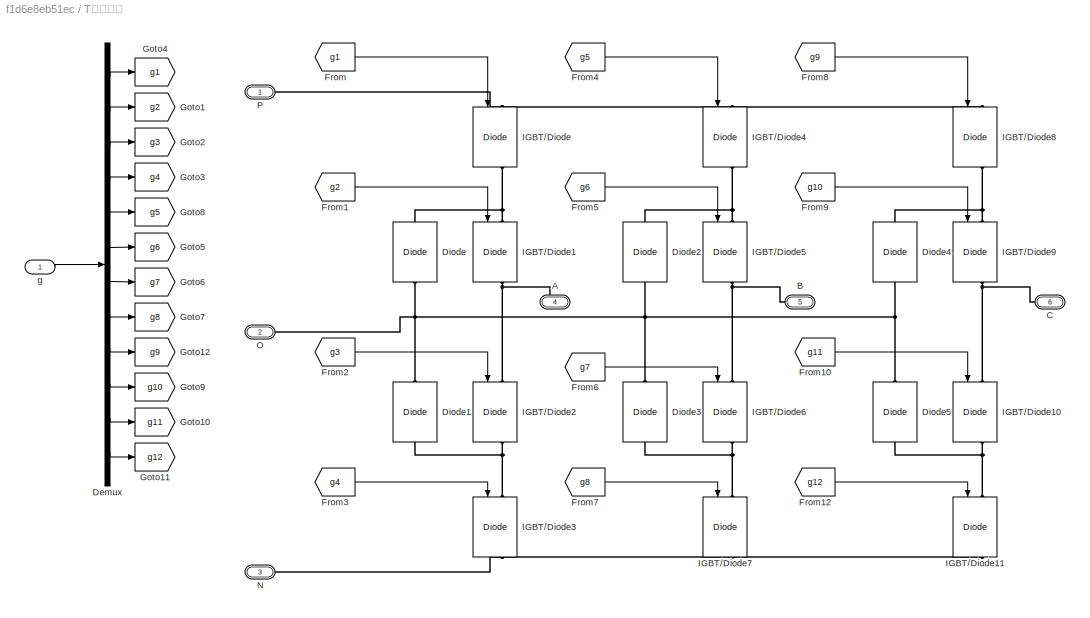
BLOCK [SubSystem] T型逆变器
  Ports = [1, 0, 0, 0, 0, 3, 3]
  RequestExecContextInheritance = off
BLOCK [PMIOPort] T型逆变器/A
  Port = 4
  Side = Right
BLOCK [PMIOPort] T型逆变器/B
  Port = 5
  Side = Right
BLOCK [PMIOPort] T型逆变器/C
  Port = 6
  Side = Right
BLOCK [Demux] T型逆变器/Demux
  Outputs = 12
  Ports = [1, 12]
BLOCK [Reference] T型逆变器/Diode  REF=powerlib/Power
Electronics/Diode
  NameLocation = right
  Ports = [0, 0, 0, 0, 0, 1, 1]
  SourceBlock = powerlib/Power\nElectronics/Diode
  SourceProductBaseCode = PS
  SourceType = Diode
BLOCK [Reference] T型逆变器/Diode1  REF=powerlib/Power
Electronics/Diode
  NameLocation = right
  Ports = [0, 0, 0, 0, 0, 1, 1]
  SourceBlock = powerlib/Power\nElectronics/Diode
  SourceProductBaseCode = PS
  SourceType = Diode
BLOCK [Reference] T型逆变器/Diode2  REF=powerlib/Power
Electronics/Diode
  NameLocation = right
  Ports = [0, 0, 0, 0, 0, 1, 1]
  SourceBlock = powerlib/Power\nElectronics/Diode
  SourceProductBaseCode = PS
  SourceType = Diode
BLOCK [Reference] T型逆变器/Diode3  REF=powerlib/Power
Electronics/Diode
  NameLocation = right
  Ports = [0, 0, 0, 0, 0, 1, 1]
  SourceBlock = powerlib/Power\nElectronics/Diode
  SourceProductBaseCode = PS
  SourceType = Diode
BLOCK [Reference] T型逆变器/Diode4  REF=powerlib/Power
Electronics/Diode
  NameLocation = right
  Ports = [0, 0, 0, 0, 0, 1, 1]
  SourceBlock = powerlib/Power\nElectronics/Diode
  SourceProductBaseCode = PS
  SourceType = Diode
BLOCK [Reference] T型逆变器/Diode5  REF=powerlib/Power
Electronics/Diode
  NameLocation = right
  Ports = [0, 0, 0, 0, 0, 1, 1]
  SourceBlock = powerlib/Power\nElectronics/Diode
  SourceProductBaseCode = PS
  SourceType = Diode
BLOCK [From] T型逆变器/From
  GotoTag = g1
BLOCK [From] T型逆变器/From1
  GotoTag = g2
BLOCK [From] T型逆变器/From10
  GotoTag = g11
BLOCK [From] T型逆变器/From12
  GotoTag = g12
BLOCK [From] T型逆变器/From2
  GotoTag = g3
BLOCK [From] T型逆变器/From3
  GotoTag = g4
BLOCK [From] T型逆变器/From4
  GotoTag = g5
BLOCK [From] T型逆变器/From5
  GotoTag = g6
BLOCK [From] T型逆变器/From6
  GotoTag = g7
BLOCK [From] T型逆变器/From7
  GotoTag = g8
BLOCK [From] T型逆变器/From8
  GotoTag = g9
BLOCK [From] T型逆变器/From9
  GotoTag = g10
BLOCK [Goto] T型逆变器/Goto1
  GotoTag = g2
BLOCK [Goto] T型逆变器/Goto10
  GotoTag = g11
BLOCK [Goto] T型逆变器/Goto11
  GotoTag = g12
BLOCK [Goto] T型逆变器/Goto12
  GotoTag = g9
BLOCK [Goto] T型逆变器/Goto2
  GotoTag = g3
BLOCK [Goto] T型逆变器/Goto3
  GotoTag = g4
BLOCK [Goto] T型逆变器/Goto4
  GotoTag = g1
BLOCK [Goto] T型逆变器/Goto5
  GotoTag = g6
BLOCK [Goto] T型逆变器/Goto6
  GotoTag = g7
BLOCK [Goto] T型逆变器/Goto7
  GotoTag = g8
BLOCK [Goto] T型逆变器/Goto8
  GotoTag = g5
BLOCK [Goto] T型逆变器/Goto9
  GotoTag = g10
BLOCK [Reference] T型逆变器/IGBT//Diode  REF=powerlib/Power
Electronics/IGBT//Diode
  NameLocation = left
  Ports = [1, 1, 0, 0, 0, 1, 1]
  SourceBlock = powerlib/Power\nElectronics/IGBT//Diode
  SourceProductBaseCode = PS
  SourceType = IGBT/Diode
BLOCK [Reference] T型逆变器/IGBT//Diode1  REF=powerlib/Power
Electronics/IGBT//Diode
  NameLocation = left
  Ports = [1, 1, 0, 0, 0, 1, 1]
  SourceBlock = powerlib/Power\nElectronics/IGBT//Diode
  SourceProductBaseCode = PS
  SourceType = IGBT/Diode
BLOCK [Reference] T型逆变器/IGBT//Diode10  REF=powerlib/Power
Electronics/IGBT//Diode
  NameLocation = left
  Ports = [1, 1, 0, 0, 0, 1, 1]
  SourceBlock = powerlib/Power\nElectronics/IGBT//Diode
  SourceProductBaseCode = PS
  SourceType = IGBT/Diode
BLOCK [Reference] T型逆变器/IGBT//Diode11  REF=powerlib/Power
Electronics/IGBT//Diode
  NameLocation = left
  Ports = [1, 1, 0, 0, 0, 1, 1]
  SourceBlock = powerlib/Power\nElectronics/IGBT//Diode
  SourceProductBaseCode = PS
  SourceType = IGBT/Diode
BLOCK [Reference] T型逆变器/IGBT//Diode2  REF=powerlib/Power
Electronics/IGBT//Diode
  NameLocation = left
  Ports = [1, 1, 0, 0, 0, 1, 1]
  SourceBlock = powerlib/Power\nElectronics/IGBT//Diode
  SourceProductBaseCode = PS
  SourceType = IGBT/Diode
BLOCK [Reference] T型逆变器/IGBT//Diode3  REF=powerlib/Power
Electronics/IGBT//Diode
  NameLocation = left
  Ports = [1, 1, 0, 0, 0, 1, 1]
  SourceBlock = powerlib/Power\nElectronics/IGBT//Diode
  SourceProductBaseCode = PS
  SourceType = IGBT/Diode
BLOCK [Reference] T型逆变器/IGBT//Diode4  REF=powerlib/Power
Electronics/IGBT//Diode
  NameLocation = left
  Ports = [1, 1, 0, 0, 0, 1, 1]
  SourceBlock = powerlib/Power\nElectronics/IGBT//Diode
  SourceProductBaseCode = PS
  SourceType = IGBT/Diode
BLOCK [Reference] T型逆变器/IGBT//Diode5  REF=powerlib/Power
Electronics/IGBT//Diode
  NameLocation = left
  Ports = [1, 1, 0, 0, 0, 1, 1]
  SourceBlock = powerlib/Power\nElectronics/IGBT//Diode
  SourceProductBaseCode = PS
  SourceType = IGBT/Diode
BLOCK [Reference] T型逆变器/IGBT//Diode6  REF=powerlib/Power
Electronics/IGBT//Diode
  NameLocation = left
  Ports = [1, 1, 0, 0, 0, 1, 1]
  SourceBlock = powerlib/Power\nElectronics/IGBT//Diode
  SourceProductBaseCode = PS
  SourceType = IGBT/Diode
BLOCK [Reference] T型逆变器/IGBT//Diode7  REF=powerlib/Power
Electronics/IGBT//Diode
  NameLocation = left
  Ports = [1, 1, 0, 0, 0, 1, 1]
  SourceBlock = powerlib/Power\nElectronics/IGBT//Diode
  SourceProductBaseCode = PS
  SourceType = IGBT/Diode
BLOCK [Reference] T型逆变器/IGBT//Diode8  REF=powerlib/Power
Electronics/IGBT//Diode
  NameLocation = left
  Ports = [1, 1, 0, 0, 0, 1, 1]
  SourceBlock = powerlib/Power\nElectronics/IGBT//Diode
  SourceProductBaseCode = PS
  SourceType = IGBT/Diode
BLOCK [Reference] T型逆变器/IGBT//Diode9  REF=powerlib/Power
Electronics/IGBT//Diode
  NameLocation = left
  Ports = [1, 1, 0, 0, 0, 1, 1]
  SourceBlock = powerlib/Power\nElectronics/IGBT//Diode
  SourceProductBaseCode = PS
  SourceType = IGBT/Diode
BLOCK [PMIOPort] T型逆变器/N
  Port = 3
  Side = Left
BLOCK [PMIOPort] T型逆变器/O
  Port = 2
  Side = Left
BLOCK [PMIOPort] T型逆变器/P
  Side = Left
BLOCK [Inport] T型逆变器/g
BLOCK [Reference] Udc  REF=powerlib/Electrical
Sources/DC Voltage Source
  NameLocation = left
  Ports = [0, 0, 0, 0, 0, 1, 1]
  SourceBlock = powerlib/Electrical\nSources/DC Voltage Source
  SourceProductBaseCode = PS
  SourceType = DC Voltage Source
BLOCK [Constant] Vdc
  Value = 580
BLOCK [Reference] Voltage Measurement  REF=powerlib/Measurements/Voltage Measurement
  Ports = [0, 1, 0, 0, 0, 2]
  SourceBlock = powerlib/Measurements/Voltage Measurement
  SourceProductBaseCode = PS
  SourceType = Voltage Measurement
  UserDataPersistent = on
BLOCK [Reference] Voltage Measurement1  REF=powerlib/Measurements/Voltage Measurement
  Ports = [0, 1, 0, 0, 0, 2]
  SourceBlock = powerlib/Measurements/Voltage Measurement
  SourceProductBaseCode = PS
  SourceType = Voltage Measurement
  UserDataPersistent = on
BLOCK [SubSystem] abc//dq
  Ports = [2, 2]
  RequestExecContextInheritance = off
BLOCK [SubSystem] abc//dq 
  Ports = [2, 2]
  RequestExecContextInheritance = off
BLOCK [Demux] abc//dq /Demux
  Outputs = 3
  Ports = [1, 3]
BLOCK [Trigonometry] abc//dq /Trigonometric Function
  Ports = [1, 1]
BLOCK [Trigonometry] abc//dq /Trigonometric Function1
  Operator = cos
  Ports = [1, 1]
BLOCK [Inport] abc//dq /abc
BLOCK [SubSystem] abc//dq /clark
  Ports = [3, 2]
  RequestExecContextInheritance = off
BLOCK [Sum] abc//dq /clark/Add
  IconShape = rectangular
  Inputs = +++
  Ports = [3, 1]
BLOCK [Sum] abc//dq /clark/Add1
  IconShape = rectangular
  Inputs = +++
  Ports = [3, 1]
BLOCK [Constant] abc//dq /clark/Constant1
  Value = 0
BLOCK [Constant] abc//dq /clark/Constant2
  Value = -sqrt(3)/2
BLOCK [Constant] abc//dq /clark/Constant3
BLOCK [Constant] abc//dq /clark/Constant4
  Value = -1/2
BLOCK [Constant] abc//dq /clark/Constant5
  Value = -1/2
BLOCK [Constant] abc//dq /clark/Constant6
  Value = 2/3
BLOCK [Constant] abc//dq /clark/Constant7
  Value = 2/3
BLOCK [Constant] abc//dq /clark/Constant9
  Value = sqrt(3)/2
BLOCK [Product] abc//dq /clark/Product1
  Ports = [2, 1]
BLOCK [Product] abc//dq /clark/Product2
  Ports = [2, 1]
BLOCK [Product] abc//dq /clark/Product3
  Ports = [2, 1]
BLOCK [Product] abc//dq /clark/Product4
  Ports = [2, 1]
BLOCK [Product] abc//dq /clark/Product5
  Ports = [2, 1]
BLOCK [Product] abc//dq /clark/Product6
  Ports = [2, 1]
BLOCK [Product] abc//dq /clark/Product7
  Ports = [2, 1]
BLOCK [Product] abc//dq /clark/Product9
  Ports = [2, 1]
BLOCK [Inport] abc//dq /clark/ea
BLOCK [Inport] abc//dq /clark/eb
  Port = 2
BLOCK [Inport] abc//dq /clark/ec
  Port = 3
BLOCK [Outport] abc//dq /clark/eα
  VectorParamsAs1DForOutWhenUnconnected = off
BLOCK [Outport] abc//dq /clark/eβ
  Port = 2
  VectorParamsAs1DForOutWhenUnconnected = off
BLOCK [Outport] abc//dq /d
  VectorParamsAs1DForOutWhenUnconnected = off
BLOCK [SubSystem] abc//dq /park
  Ports = [4, 2]
  RequestExecContextInheritance = off
BLOCK [Sum] abc//dq /park/Add
  IconShape = rectangular
  Ports = [2, 1]
BLOCK [Sum] abc//dq /park/Add2
  IconShape = rectangular
  Inputs = -+
  Ports = [2, 1]
BLOCK [Product] abc//dq /park/Product
  Ports = [2, 1]
BLOCK [Product] abc//dq /park/Product1
  Ports = [2, 1]
BLOCK [Product] abc//dq /park/Product2
  Ports = [2, 1]
BLOCK [Product] abc//dq /park/Product3
  Ports = [2, 1]
BLOCK [Inport] abc//dq /park/cos
  Port = 3
BLOCK [Outport] abc//dq /park/ed
  VectorParamsAs1DForOutWhenUnconnected = off
BLOCK [Outport] abc//dq /park/eq
  Port = 2
  VectorParamsAs1DForOutWhenUnconnected = off
BLOCK [Inport] abc//dq /park/eα
BLOCK [Inport] abc//dq /park/eβ
  Port = 2
BLOCK [Inport] abc//dq /park/sin
  Port = 4
BLOCK [Outport] abc//dq /q
  Port = 2
  VectorParamsAs1DForOutWhenUnconnected = off
BLOCK [Inport] abc//dq /wt
  Port = 2
BLOCK [Demux] abc//dq/Demux
  Outputs = 3
  Ports = [1, 3]
BLOCK [Trigonometry] abc//dq/Trigonometric Function
  Ports = [1, 1]
BLOCK [Trigonometry] abc//dq/Trigonometric Function1
  Operator = cos
  Ports = [1, 1]
BLOCK [Inport] abc//dq/abc
BLOCK [SubSystem] abc//dq/clark
  Ports = [3, 2]
  RequestExecContextInheritance = off
BLOCK [Sum] abc//dq/clark/Add
  IconShape = rectangular
  Inputs = +++
  Ports = [3, 1]
BLOCK [Sum] abc//dq/clark/Add1
  IconShape = rectangular
  Inputs = +++
  Ports = [3, 1]
BLOCK [Constant] abc//dq/clark/Constant1
  Value = 0
BLOCK [Constant] abc//dq/clark/Constant2
  Value = -sqrt(3)/2
BLOCK [Constant] abc//dq/clark/Constant3
BLOCK [Constant] abc//dq/clark/Constant4
  Value = -1/2
BLOCK [Constant] abc//dq/clark/Constant5
  Value = -1/2
BLOCK [Constant] abc//dq/clark/Constant6
  Value = 2/3
BLOCK [Constant] abc//dq/clark/Constant7
  Value = 2/3
BLOCK [Constant] abc//dq/clark/Constant9
  Value = sqrt(3)/2
BLOCK [Product] abc//dq/clark/Product1
  Ports = [2, 1]
BLOCK [Product] abc//dq/clark/Product2
  Ports = [2, 1]
BLOCK [Product] abc//dq/clark/Product3
  Ports = [2, 1]
BLOCK [Product] abc//dq/clark/Product4
  Ports = [2, 1]
BLOCK [Product] abc//dq/clark/Product5
  Ports = [2, 1]
BLOCK [Product] abc//dq/clark/Product6
  Ports = [2, 1]
BLOCK [Product] abc//dq/clark/Product7
  Ports = [2, 1]
BLOCK [Product] abc//dq/clark/Product9
  Ports = [2, 1]
BLOCK [Inport] abc//dq/clark/ea
BLOCK [Inport] abc//dq/clark/eb
  Port = 2
BLOCK [Inport] abc//dq/clark/ec
  Port = 3
BLOCK [Outport] abc//dq/clark/eα
  VectorParamsAs1DForOutWhenUnconnected = off
BLOCK [Outport] abc//dq/clark/eβ
  Port = 2
  VectorParamsAs1DForOutWhenUnconnected = off
BLOCK [Outport] abc//dq/d
  VectorParamsAs1DForOutWhenUnconnected = off
BLOCK [SubSystem] abc//dq/park
  Ports = [4, 2]
  RequestExecContextInheritance = off
BLOCK [Sum] abc//dq/park/Add
  IconShape = rectangular
  Ports = [2, 1]
BLOCK [Sum] abc//dq/park/Add2
  IconShape = rectangular
  Inputs = -+
  Ports = [2, 1]
BLOCK [Product] abc//dq/park/Product
  Ports = [2, 1]
BLOCK [Product] abc//dq/park/Product1
  Ports = [2, 1]
BLOCK [Product] abc//dq/park/Product2
  Ports = [2, 1]
BLOCK [Product] abc//dq/park/Product3
  Ports = [2, 1]
BLOCK [Inport] abc//dq/park/cos
  Port = 3
BLOCK [Outport] abc//dq/park/ed
  VectorParamsAs1DForOutWhenUnconnected = off
BLOCK [Outport] abc//dq/park/eq
  Port = 2
  VectorParamsAs1DForOutWhenUnconnected = off
BLOCK [Inport] abc//dq/park/eα
BLOCK [Inport] abc//dq/park/eβ
  Port = 2
BLOCK [Inport] abc//dq/park/sin
  Port = 4
BLOCK [Outport] abc//dq/q
  Port = 2
  VectorParamsAs1DForOutWhenUnconnected = off
BLOCK [Inport] abc//dq/wt
  Port = 2
BLOCK [Reference] powergui  REF=powerlib/powergui
  Ports = []
  Priority = 1
  SourceBlock = powerlib/powergui
  SourceProductBaseCode = PS
  SourceType = PSB option menu block
BLOCK [Reference] 电网  REF=powerlib/Electrical
Sources/Three-Phase
Programmable
Voltage Source
  Ports = [0, 0, 0, 0, 0, 1, 3]
  SourceBlock = powerlib/Electrical\nSources/Three-Phase\nProgrammable\nVoltage Source
  SourceProductBaseCode = PS
  SourceType = Three-Phase Programmable Voltage Source
LINE 2r//2s/Add3:1 -> 2r//2s/α*:1
LINE 2r//2s/Add4:1 -> 2r//2s/β*:1
LINE 2r//2s/Product1:1 -> 2r//2s/Add3:2
LINE 2r//2s/Product2:1 -> 2r//2s/Add4:1
LINE 2r//2s/Product3:1 -> 2r//2s/Add4:2
LINE 2r//2s/Product:1 -> 2r//2s/Add3:1
NET 2r//2s/Trigonometric Function1:1 -> 2r//2s/Product3:2, 2r//2s/Product:2
NET 2r//2s/Trigonometric Function:1 -> 2r//2s/Product1:2, 2r//2s/Product2:2
NET 2r//2s/d:1 -> 2r//2s/Product2:1, 2r//2s/Product:1
NET 2r//2s/q:1 -> 2r//2s/Product1:1, 2r//2s/Product3:1
NET 2r//2s/wt:1 -> 2r//2s/Trigonometric Function1:1, 2r//2s/Trigonometric Function:1
LINE 2r//2s:1 -> Goto5:1
LINE 2r//2s:2 -> Goto6:1
LINE Add:1 -> Scope2:1
LINE Clock:1 -> Switch:2
LINE Constant1:1 -> Switch:1
LINE Constant2:1 -> Sum1:2
LINE Constant3:1 -> Switch:3
LINE Current Measurement:1 -> Scope4:1
LINE From10:1 -> T型逆变器:1
LINE From11:1 -> SVPWM:3
LINE From12:1 -> 2r//2s:3
LINE From13:1 -> Sum4:3
LINE From14:1 -> Gain1:1
LINE From15:1 -> Sum5:1
LINE From16:1 -> Gain2:1
LINE From17:1 -> Scope:1
LINE From18:1 -> Scope1:1
LINE From19:1 -> Scope1:2
LINE From1:1 -> PLL:1
LINE From20:1 -> Scope3:1
LINE From21:1 -> Scope3:2
LINE From22:1 -> SVPWM:4
LINE From23:1 -> SVPWM:5
LINE From24:1 -> Add:1
LINE From25:1 -> Add:2
LINE From26:1 -> SVPWM:6
LINE From27:1 -> SVPWM:7
LINE From28:1 -> Scope:2
NET From2:1 -> abc//dq :2, abc//dq:2
LINE From3:1 -> abc//dq :1
LINE From4:1 -> PQ_calculation:1
LINE From5:1 -> PQ_calculation:2
LINE From6:1 -> PQ_calculation:3
LINE From7:1 -> PQ_calculation:4
LINE From8:1 -> Sum2:1
LINE From9:1 -> Sum3:2
LINE From:1 -> abc//dq:1
LINE Gain1:1 -> Sum4:1
LINE Gain2:1 -> Sum5:3
LINE PID Controller1:1 -> Sum3:1
LINE PID Controller2:1 -> Sum4:2
LINE PID Controller3:1 -> Sum5:2
LINE PID Controller4:1 -> Sum2:2
NET PLL/ :1 -> PLL/Add1:2, PLL/Math Function:2
LINE PLL/Add1:1 -> PLL/Transfer Fcn:1
LINE PLL/Demux:1 -> PLL/clark:1
LINE PLL/Demux:2 -> PLL/clark:2
LINE PLL/Demux:3 -> PLL/clark:3
NET PLL/Math Function:1 -> PLL/Trigonometric Function1:1, PLL/Trigonometric Function:1, PLL/wt:1
LINE PLL/Transfer Fcn:1 -> PLL/Math Function:1
LINE PLL/Trigonometric Function1:1 -> PLL/park:3
LINE PLL/Trigonometric Function:1 -> PLL/park:4
LINE PLL/clark/Add1:1 -> PLL/clark/Product7:2
LINE PLL/clark/Add:1 -> PLL/clark/Product6:2
LINE PLL/clark/Constant1:1 -> PLL/clark/Product1:1
LINE PLL/clark/Constant2:1 -> PLL/clark/Product9:1
LINE PLL/clark/Constant3:1 -> PLL/clark/Product3:1
LINE PLL/clark/Constant4:1 -> PLL/clark/Product5:1
LINE PLL/clark/Constant5:1 -> PLL/clark/Product4:1
LINE PLL/clark/Constant6:1 -> PLL/clark/Product6:1
LINE PLL/clark/Constant7:1 -> PLL/clark/Product7:1
LINE PLL/clark/Constant9:1 -> PLL/clark/Product2:1
LINE PLL/clark/Product1:1 -> PLL/clark/Add1:1
LINE PLL/clark/Product2:1 -> PLL/clark/Add1:2
LINE PLL/clark/Product3:1 -> PLL/clark/Add:1
LINE PLL/clark/Product4:1 -> PLL/clark/Add:2
LINE PLL/clark/Product5:1 -> PLL/clark/Add:3
LINE PLL/clark/Product6:1 -> PLL/clark/eα:1
LINE PLL/clark/Product7:1 -> PLL/clark/eβ:1
LINE PLL/clark/Product9:1 -> PLL/clark/Add1:3
NET PLL/clark/ea:1 -> PLL/clark/Product1:2, PLL/clark/Product3:2
NET PLL/clark/eb:1 -> PLL/clark/Product2:2, PLL/clark/Product4:2
NET PLL/clark/ec:1 -> PLL/clark/Product5:2, PLL/clark/Product9:2
LINE PLL/clark:1 -> PLL/park:1
LINE PLL/clark:2 -> PLL/park:2
LINE PLL/eabc:1 -> PLL/Demux:1
LINE PLL/park/Add2:1 -> PLL/park/eq:1
LINE PLL/park/Add:1 -> PLL/park/ed:1
LINE PLL/park/Product1:1 -> PLL/park/Add:2
LINE PLL/park/Product2:1 -> PLL/park/Add2:1
LINE PLL/park/Product3:1 -> PLL/park/Add2:2
LINE PLL/park/Product:1 -> PLL/park/Add:1
NET PLL/park/cos:1 -> PLL/park/Product3:2, PLL/park/Product:2
NET PLL/park/eα:1 -> PLL/park/Product2:1, PLL/park/Product:1
NET PLL/park/eβ:1 -> PLL/park/Product1:1, PLL/park/Product3:1
NET PLL/park/sin:1 -> PLL/park/Product1:2, PLL/park/Product2:2
LINE PLL/park:2 -> PLL/ :1
LINE PLL/ω0:1 -> PLL/Add1:1
LINE PLL:1 -> Goto4:1
LINE PQ_calculation/Gain1:1 -> PQ_calculation/Q_fdb:1
LINE PQ_calculation/Gain:1 -> PQ_calculation/P_fdb:1
NET PQ_calculation/Id:1 -> PQ_calculation/Product2:2, PQ_calculation/Product:2
NET PQ_calculation/Iq:1 -> PQ_calculation/Product1:2, PQ_calculation/Product3:2
LINE PQ_calculation/Product1:1 -> PQ_calculation/Sum2:2
LINE PQ_calculation/Product2:1 -> PQ_calculation/Sum3:1
LINE PQ_calculation/Product3:1 -> PQ_calculation/Sum3:2
LINE PQ_calculation/Product:1 -> PQ_calculation/Sum2:1
LINE PQ_calculation/Sum2:1 -> PQ_calculation/Gain:1
LINE PQ_calculation/Sum3:1 -> PQ_calculation/Gain1:1
NET PQ_calculation/Vd:1 -> PQ_calculation/Product3:1, PQ_calculation/Product:1
NET PQ_calculation/Vq:1 -> PQ_calculation/Product1:1, PQ_calculation/Product2:1
NET PQ_calculation:1 -> Goto7:1, Sum:2
NET PQ_calculation:2 -> Goto8:1, Sum1:1
NET SVPWM/Complex to Magnitude-Angle:1 -> SVPWM/Product:2, SVPWM/Scope:1, SVPWM/Small:1
LINE SVPWM/Complex to Magnitude-Angle:2 -> SVPWM/Large:1
LINE SVPWM/Constant:1 -> SVPWM/Product:1
LINE SVPWM/Demux4:1 -> SVPWM/T:7
LINE SVPWM/Demux4:2 -> SVPWM/T:8
LINE SVPWM/Demux4:3 -> SVPWM/T:9
LINE SVPWM/Divide:1 -> SVPWM/T:2
LINE SVPWM/Iabc:1 -> SVPWM/Demux4:1
LINE SVPWM/Large/Add1:1 -> SVPWM/Large/Ceil:1
NET SVPWM/Large/Add:1 -> SVPWM/Large/Fcn1:1, SVPWM/Large/Fcn2:1, SVPWM/Large/Fcn3:1, SVPWM/Large/Fcn4:1, SVPWM/Large/Fcn5:1, SVPWM/Large/Fcn6:1, SVPWM/Large/Fcn7:1, SVPWM/Large/Product:1
NET SVPWM/Large/Ceil:1 -> SVPWM/Large/Multiport Switch1:1, SVPWM/Large/Multiport Switch:1
LINE SVPWM/Large/Constant1:1 -> SVPWM/Large/Product:2
LINE SVPWM/Large/Constant2:1 -> SVPWM/Large/Multiport Switch:5
LINE SVPWM/Large/Constant3:1 -> SVPWM/Large/Multiport Switch:6
LINE SVPWM/Large/Constant4:1 -> SVPWM/Large/Multiport Switch:7
NET SVPWM/Large/Constant5:1 -> SVPWM/Large/Multiport Switch:2, SVPWM/Large/Multiport Switch:8
LINE SVPWM/Large/Constant6:1 -> SVPWM/Large/Multiport Switch:3
LINE SVPWM/Large/Constant7:1 -> SVPWM/Large/Multiport Switch:4
LINE SVPWM/Large/Constant8:1 -> SVPWM/Large/Add1:2
LINE SVPWM/Large/Constant:1 -> SVPWM/Large/Add:2
LINE SVPWM/Large/Fcn1:1 -> SVPWM/Large/Multiport Switch1:8
LINE SVPWM/Large/Fcn2:1 -> SVPWM/Large/Multiport Switch1:2
LINE SVPWM/Large/Fcn3:1 -> SVPWM/Large/Multiport Switch1:3
LINE SVPWM/Large/Fcn4:1 -> SVPWM/Large/Multiport Switch1:4
LINE SVPWM/Large/Fcn5:1 -> SVPWM/Large/Multiport Switch1:5
LINE SVPWM/Large/Fcn6:1 -> SVPWM/Large/Multiport Switch1:6
LINE SVPWM/Large/Fcn7:1 -> SVPWM/Large/Multiport Switch1:7
LINE SVPWM/Large/Multiport Switch1:1 -> SVPWM/Large/theta':1
LINE SVPWM/Large/Multiport Switch:1 -> SVPWM/Large/N:1
LINE SVPWM/Large/Product:1 -> SVPWM/Large/Add1:1
LINE SVPWM/Large/∠u:1 -> SVPWM/Large/Add:1
NET SVPWM/Large:1 -> SVPWM/T:4, SVPWM/state:3
NET SVPWM/Large:2 -> SVPWM/Small:2, SVPWM/T:1
LINE SVPWM/M/Add10:1 -> SVPWM/M/Relay5:1
LINE SVPWM/M/Add14:1 -> SVPWM/M/Sum:1
NET SVPWM/M/Add1:1 -> SVPWM/M/Add2:1, SVPWM/M/Add7:2
NET SVPWM/M/Add2:1 -> SVPWM/M/Add3:1, SVPWM/M/Add8:2
NET SVPWM/M/Add3:1 -> SVPWM/M/Add4:1, SVPWM/M/Add9:2
LINE SVPWM/M/Add4:1 -> SVPWM/M/Add10:2
LINE SVPWM/M/Add5:1 -> SVPWM/M/Relay:1
LINE SVPWM/M/Add6:1 -> SVPWM/M/Relay1:1
LINE SVPWM/M/Add7:1 -> SVPWM/M/Relay2:1
LINE SVPWM/M/Add8:1 -> SVPWM/M/Relay3:1
LINE SVPWM/M/Add9:1 -> SVPWM/M/Relay4:1
NET SVPWM/M/Add:1 -> SVPWM/M/Add1:1, SVPWM/M/Add6:2
LINE SVPWM/M/Constant:1 -> SVPWM/M/Sum:2
NET SVPWM/M/Gain1:1 -> SVPWM/M/Add4:2, SVPWM/M/Add:2
NET SVPWM/M/Gain2:1 -> SVPWM/M/Add1:2, SVPWM/M/Add3:2
LINE SVPWM/M/Gain3:1 -> SVPWM/M/Add2:2
LINE SVPWM/M/Gain4:1 -> SVPWM/M/Gain:1
LINE SVPWM/M/Gain5:1 -> SVPWM/M/Gain3:1
NET SVPWM/M/Gain:1 -> SVPWM/M/Add5:2, SVPWM/M/Add:1, SVPWM/M/Scope1:2
LINE SVPWM/M/Relay1:1 -> SVPWM/M/Add14:2
LINE SVPWM/M/Relay2:1 -> SVPWM/M/Add14:3
LINE SVPWM/M/Relay3:1 -> SVPWM/M/Add14:4
LINE SVPWM/M/Relay4:1 -> SVPWM/M/Add14:5
LINE SVPWM/M/Relay5:1 -> SVPWM/M/Add14:6
LINE SVPWM/M/Relay:1 -> SVPWM/M/Add14:1
NET SVPWM/M/Repeating Sequence:1 -> SVPWM/M/Add10:1, SVPWM/M/Add5:1, SVPWM/M/Add6:1, SVPWM/M/Add7:1, SVPWM/M/Add8:1, SVPWM/M/Add9:1, SVPWM/M/Scope1:1, SVPWM/M/Scope:1
LINE SVPWM/M/Sum:1 -> SVPWM/M/M:1
LINE SVPWM/M/T01:1 -> SVPWM/M/Gain4:1
LINE SVPWM/M/T02:1 -> SVPWM/M/Gain5:1
LINE SVPWM/M/T2:1 -> SVPWM/M/Gain1:1
LINE SVPWM/M/T3:1 -> SVPWM/M/Gain2:1
LINE SVPWM/M:1 -> SVPWM/state:2
LINE SVPWM/Manual Switch:1 -> SVPWM/T:6
LINE SVPWM/Mux:1 -> SVPWM/SVPWM:1
LINE SVPWM/PI/Add:1 -> SVPWM/PI/Saturation1:1
NET SVPWM/PI/In1:1 -> SVPWM/PI/Ki:1, SVPWM/PI/Kp:1
LINE SVPWM/PI/Integrator:1 -> SVPWM/PI/Saturation:1
LINE SVPWM/PI/Ki:1 -> SVPWM/PI/Integrator:1
LINE SVPWM/PI/Kp:1 -> SVPWM/PI/Add:1
LINE SVPWM/PI/Saturation1:1 -> SVPWM/PI/Out1:1
LINE SVPWM/PI/Saturation:1 -> SVPWM/PI/Add:2
LINE SVPWM/PI:1 -> SVPWM/Manual Switch:1
LINE SVPWM/Product:1 -> SVPWM/Divide:1
LINE SVPWM/Real-Imag to Complex:1 -> SVPWM/Complex to Magnitude-Angle:1
LINE SVPWM/Small/ 2:1 -> SVPWM/Small/Vβ:1
LINE SVPWM/Small/ :1 -> SVPWM/Small/Vα:2
LINE SVPWM/Small/Add1:1 -> SVPWM/Small/Switch3:2
LINE SVPWM/Small/Add2:1 -> SVPWM/Small/Switch5:2
NET SVPWM/Small/Add:1 -> SVPWM/Small/Switch2:2, SVPWM/Small/Switch4:2
LINE SVPWM/Small/Constant1:1 -> SVPWM/Small/Product1:2
LINE SVPWM/Small/Constant2:1 -> SVPWM/Small/Switch2:3
LINE SVPWM/Small/Constant3:1 -> SVPWM/Small/Switch2:1
LINE SVPWM/Small/Constant4:1 -> SVPWM/Small/Switch3:3
LINE SVPWM/Small/Constant5:1 -> SVPWM/Small/Switch4:3
LINE SVPWM/Small/Constant6:1 -> SVPWM/Small/Switch4:1
LINE SVPWM/Small/Constant7:1 -> SVPWM/Small/Switch5:1
LINE SVPWM/Small/Constant8:1 -> SVPWM/Small/Product2:1
LINE SVPWM/Small/Constant:1 -> SVPWM/Small/Product:1
NET SVPWM/Small/Product1:1 -> SVPWM/Small/Add1:3, SVPWM/Small/Add:3
LINE SVPWM/Small/Product2:1 -> SVPWM/Small/Add2:2
NET SVPWM/Small/Product:1 -> SVPWM/Small/Add1:1, SVPWM/Small/Add:1
LINE SVPWM/Small/Switch1:1 -> SVPWM/Small/n:1
LINE SVPWM/Small/Switch2:1 -> SVPWM/Small/Switch3:1
LINE SVPWM/Small/Switch3:1 -> SVPWM/Small/Switch1:3
LINE SVPWM/Small/Switch4:1 -> SVPWM/Small/Switch5:3
LINE SVPWM/Small/Switch5:1 -> SVPWM/Small/Switch1:1
NET SVPWM/Small/Udc:1 -> SVPWM/Small/Product1:1, SVPWM/Small/Product2:2
LINE SVPWM/Small/Vα:1 -> SVPWM/Small/Product:2
NET SVPWM/Small/Vβ:1 -> SVPWM/Small/Add1:2, SVPWM/Small/Add2:1, SVPWM/Small/Add:2
NET SVPWM/Small/theta':1 -> SVPWM/Small/ 2:1, SVPWM/Small/ :1, SVPWM/Small/Switch1:2
NET SVPWM/Small/u:1 -> SVPWM/Small/Vα:1, SVPWM/Small/Vβ:2
NET SVPWM/Small:1 -> SVPWM/T:5, SVPWM/state:1
LINE SVPWM/Sum:1 -> SVPWM/PI:1
LINE SVPWM/T:1 -> SVPWM/M:1
LINE SVPWM/T:2 -> SVPWM/M:2
LINE SVPWM/T:3 -> SVPWM/M:3
LINE SVPWM/T:4 -> SVPWM/M:4
LINE SVPWM/Ts:1 -> SVPWM/T:3
NET SVPWM/Udc:1 -> SVPWM/Divide:2, SVPWM/Small:3
LINE SVPWM/Un:1 -> SVPWM/Sum:2
LINE SVPWM/Up:1 -> SVPWM/Sum:1
LINE SVPWM/no bus balance:1 -> SVPWM/Manual Switch:2
LINE SVPWM/pulses/Add:1 -> SVPWM/pulses/Demux:1
NET SVPWM/pulses/Constant11:1 -> SVPWM/pulses/Multiport Switch1:4, SVPWM/pulses/Multiport Switch2:4, SVPWM/pulses/Multiport Switch:4
NET SVPWM/pulses/Constant12:1 -> SVPWM/pulses/Multiport Switch1:2, SVPWM/pulses/Multiport Switch2:2, SVPWM/pulses/Multiport Switch:2
NET SVPWM/pulses/Constant13:1 -> SVPWM/pulses/Multiport Switch1:3, SVPWM/pulses/Multiport Switch2:3, SVPWM/pulses/Multiport Switch:3
LINE SVPWM/pulses/Constant:1 -> SVPWM/pulses/Add:2
LINE SVPWM/pulses/Demux:1 -> SVPWM/pulses/Multiport Switch:1
LINE SVPWM/pulses/Demux:2 -> SVPWM/pulses/Multiport Switch1:1
LINE SVPWM/pulses/Demux:3 -> SVPWM/pulses/Multiport Switch2:1
LINE SVPWM/pulses/Multiport Switch1:1 -> SVPWM/pulses/pulses2:1
LINE SVPWM/pulses/Multiport Switch2:1 -> SVPWM/pulses/pulses3:1
LINE SVPWM/pulses/Multiport Switch:1 -> SVPWM/pulses/pulses1:1
LINE SVPWM/pulses/state:1 -> SVPWM/pulses/Add:1
LINE SVPWM/pulses:1 -> SVPWM/Mux:1
LINE SVPWM/pulses:2 -> SVPWM/Mux:2
LINE SVPWM/pulses:3 -> SVPWM/Mux:3
NET SVPWM/state/1/M:1 -> SVPWM/state/1/Subsystem10:1, SVPWM/state/1/Subsystem5:1, SVPWM/state/1/Subsystem6:1, SVPWM/state/1/Subsystem7:1, SVPWM/state/1/Subsystem8:1, SVPWM/state/1/Subsystem9:1
LINE SVPWM/state/1/Multiport Switch:1 -> SVPWM/state/1/state:1
LINE SVPWM/state/1/Subsystem10/Constant1:1 -> SVPWM/state/1/Subsystem10/Multiport Switch:3
LINE SVPWM/state/1/Subsystem10/Constant2:1 -> SVPWM/state/1/Subsystem10/Multiport Switch:4
LINE SVPWM/state/1/Subsystem10/Constant3:1 -> SVPWM/state/1/Subsystem10/Multiport Switch:5
LINE SVPWM/state/1/Subsystem10/Constant4:1 -> SVPWM/state/1/Subsystem10/Multiport Switch:7
LINE SVPWM/state/1/Subsystem10/Constant5:1 -> SVPWM/state/1/Subsystem10/Multiport Switch:6
LINE SVPWM/state/1/Subsystem10/Constant6:1 -> SVPWM/state/1/Subsystem10/Multiport Switch:8
LINE SVPWM/state/1/Subsystem10/Constant:1 -> SVPWM/state/1/Subsystem10/Multiport Switch:2
LINE SVPWM/state/1/Subsystem10/M:1 -> SVPWM/state/1/Subsystem10/Multiport Switch:1
LINE SVPWM/state/1/Subsystem10/Multiport Switch:1 -> SVPWM/state/1/Subsystem10/state:1
LINE SVPWM/state/1/Subsystem10:1 -> SVPWM/state/1/Multiport Switch:7
LINE SVPWM/state/1/Subsystem5/Constant1:1 -> SVPWM/state/1/Subsystem5/Multiport Switch:3
LINE SVPWM/state/1/Subsystem5/Constant2:1 -> SVPWM/state/1/Subsystem5/Multiport Switch:4
LINE SVPWM/state/1/Subsystem5/Constant3:1 -> SVPWM/state/1/Subsystem5/Multiport Switch:5
LINE SVPWM/state/1/Subsystem5/Constant4:1 -> SVPWM/state/1/Subsystem5/Multiport Switch:7
LINE SVPWM/state/1/Subsystem5/Constant5:1 -> SVPWM/state/1/Subsystem5/Multiport Switch:6
LINE SVPWM/state/1/Subsystem5/Constant6:1 -> SVPWM/state/1/Subsystem5/Multiport Switch:8
LINE SVPWM/state/1/Subsystem5/Constant:1 -> SVPWM/state/1/Subsystem5/Multiport Switch:2
LINE SVPWM/state/1/Subsystem5/M:1 -> SVPWM/state/1/Subsystem5/Multiport Switch:1
LINE SVPWM/state/1/Subsystem5/Multiport Switch:1 -> SVPWM/state/1/Subsystem5/state:1
LINE SVPWM/state/1/Subsystem5:1 -> SVPWM/state/1/Multiport Switch:2
LINE SVPWM/state/1/Subsystem6/Constant1:1 -> SVPWM/state/1/Subsystem6/Multiport Switch:3
LINE SVPWM/state/1/Subsystem6/Constant2:1 -> SVPWM/state/1/Subsystem6/Multiport Switch:4
LINE SVPWM/state/1/Subsystem6/Constant3:1 -> SVPWM/state/1/Subsystem6/Multiport Switch:5
LINE SVPWM/state/1/Subsystem6/Constant4:1 -> SVPWM/state/1/Subsystem6/Multiport Switch:7
LINE SVPWM/state/1/Subsystem6/Constant5:1 -> SVPWM/state/1/Subsystem6/Multiport Switch:6
LINE SVPWM/state/1/Subsystem6/Constant6:1 -> SVPWM/state/1/Subsystem6/Multiport Switch:8
LINE SVPWM/state/1/Subsystem6/Constant:1 -> SVPWM/state/1/Subsystem6/Multiport Switch:2
LINE SVPWM/state/1/Subsystem6/M:1 -> SVPWM/state/1/Subsystem6/Multiport Switch:1
LINE SVPWM/state/1/Subsystem6/Multiport Switch:1 -> SVPWM/state/1/Subsystem6/state:1
LINE SVPWM/state/1/Subsystem6:1 -> SVPWM/state/1/Multiport Switch:3
LINE SVPWM/state/1/Subsystem7/Constant1:1 -> SVPWM/state/1/Subsystem7/Multiport Switch:3
LINE SVPWM/state/1/Subsystem7/Constant2:1 -> SVPWM/state/1/Subsystem7/Multiport Switch:4
LINE SVPWM/state/1/Subsystem7/Constant3:1 -> SVPWM/state/1/Subsystem7/Multiport Switch:5
LINE SVPWM/state/1/Subsystem7/Constant4:1 -> SVPWM/state/1/Subsystem7/Multiport Switch:7
LINE SVPWM/state/1/Subsystem7/Constant5:1 -> SVPWM/state/1/Subsystem7/Multiport Switch:6
LINE SVPWM/state/1/Subsystem7/Constant6:1 -> SVPWM/state/1/Subsystem7/Multiport Switch:8
LINE SVPWM/state/1/Subsystem7/Constant:1 -> SVPWM/state/1/Subsystem7/Multiport Switch:2
LINE SVPWM/state/1/Subsystem7/M:1 -> SVPWM/state/1/Subsystem7/Multiport Switch:1
LINE SVPWM/state/1/Subsystem7/Multiport Switch:1 -> SVPWM/state/1/Subsystem7/state:1
LINE SVPWM/state/1/Subsystem7:1 -> SVPWM/state/1/Multiport Switch:4
LINE SVPWM/state/1/Subsystem8/Constant1:1 -> SVPWM/state/1/Subsystem8/Multiport Switch:3
LINE SVPWM/state/1/Subsystem8/Constant2:1 -> SVPWM/state/1/Subsystem8/Multiport Switch:4
LINE SVPWM/state/1/Subsystem8/Constant3:1 -> SVPWM/state/1/Subsystem8/Multiport Switch:5
LINE SVPWM/state/1/Subsystem8/Constant4:1 -> SVPWM/state/1/Subsystem8/Multiport Switch:7
LINE SVPWM/state/1/Subsystem8/Constant5:1 -> SVPWM/state/1/Subsystem8/Multiport Switch:6
LINE SVPWM/state/1/Subsystem8/Constant6:1 -> SVPWM/state/1/Subsystem8/Multiport Switch:8
LINE SVPWM/state/1/Subsystem8/Constant:1 -> SVPWM/state/1/Subsystem8/Multiport Switch:2
LINE SVPWM/state/1/Subsystem8/M:1 -> SVPWM/state/1/Subsystem8/Multiport Switch:1
LINE SVPWM/state/1/Subsystem8/Multiport Switch:1 -> SVPWM/state/1/Subsystem8/state:1
LINE SVPWM/state/1/Subsystem8:1 -> SVPWM/state/1/Multiport Switch:5
LINE SVPWM/state/1/Subsystem9/Constant1:1 -> SVPWM/state/1/Subsystem9/Multiport Switch:3
LINE SVPWM/state/1/Subsystem9/Constant2:1 -> SVPWM/state/1/Subsystem9/Multiport Switch:4
LINE SVPWM/state/1/Subsystem9/Constant3:1 -> SVPWM/state/1/Subsystem9/Multiport Switch:5
LINE SVPWM/state/1/Subsystem9/Constant4:1 -> SVPWM/state/1/Subsystem9/Multiport Switch:7
LINE SVPWM/state/1/Subsystem9/Constant5:1 -> SVPWM/state/1/Subsystem9/Multiport Switch:6
LINE SVPWM/state/1/Subsystem9/Constant6:1 -> SVPWM/state/1/Subsystem9/Multiport Switch:8
LINE SVPWM/state/1/Subsystem9/Constant:1 -> SVPWM/state/1/Subsystem9/Multiport Switch:2
LINE SVPWM/state/1/Subsystem9/M:1 -> SVPWM/state/1/Subsystem9/Multiport Switch:1
LINE SVPWM/state/1/Subsystem9/Multiport Switch:1 -> SVPWM/state/1/Subsystem9/state:1
LINE SVPWM/state/1/Subsystem9:1 -> SVPWM/state/1/Multiport Switch:6
LINE SVPWM/state/1/n:1 -> SVPWM/state/1/Multiport Switch:1
LINE SVPWM/state/1:1 -> SVPWM/state/Multiport Switch:2
NET SVPWM/state/2/M:1 -> SVPWM/state/2/Subsystem10:1, SVPWM/state/2/Subsystem5:1, SVPWM/state/2/Subsystem6:1, SVPWM/state/2/Subsystem7:1, SVPWM/state/2/Subsystem8:1, SVPWM/state/2/Subsystem9:1
LINE SVPWM/state/2/Multiport Switch:1 -> SVPWM/state/2/state:1
LINE SVPWM/state/2/Subsystem10/Constant1:1 -> SVPWM/state/2/Subsystem10/Multiport Switch:3
LINE SVPWM/state/2/Subsystem10/Constant2:1 -> SVPWM/state/2/Subsystem10/Multiport Switch:4
LINE SVPWM/state/2/Subsystem10/Constant3:1 -> SVPWM/state/2/Subsystem10/Multiport Switch:5
LINE SVPWM/state/2/Subsystem10/Constant4:1 -> SVPWM/state/2/Subsystem10/Multiport Switch:7
LINE SVPWM/state/2/Subsystem10/Constant5:1 -> SVPWM/state/2/Subsystem10/Multiport Switch:6
LINE SVPWM/state/2/Subsystem10/Constant6:1 -> SVPWM/state/2/Subsystem10/Multiport Switch:8
LINE SVPWM/state/2/Subsystem10/Constant:1 -> SVPWM/state/2/Subsystem10/Multiport Switch:2
LINE SVPWM/state/2/Subsystem10/M:1 -> SVPWM/state/2/Subsystem10/Multiport Switch:1
LINE SVPWM/state/2/Subsystem10/Multiport Switch:1 -> SVPWM/state/2/Subsystem10/state:1
LINE SVPWM/state/2/Subsystem10:1 -> SVPWM/state/2/Multiport Switch:7
LINE SVPWM/state/2/Subsystem5/Constant1:1 -> SVPWM/state/2/Subsystem5/Multiport Switch:3
LINE SVPWM/state/2/Subsystem5/Constant2:1 -> SVPWM/state/2/Subsystem5/Multiport Switch:4
LINE SVPWM/state/2/Subsystem5/Constant3:1 -> SVPWM/state/2/Subsystem5/Multiport Switch:5
LINE SVPWM/state/2/Subsystem5/Constant4:1 -> SVPWM/state/2/Subsystem5/Multiport Switch:7
LINE SVPWM/state/2/Subsystem5/Constant5:1 -> SVPWM/state/2/Subsystem5/Multiport Switch:6
LINE SVPWM/state/2/Subsystem5/Constant6:1 -> SVPWM/state/2/Subsystem5/Multiport Switch:8
LINE SVPWM/state/2/Subsystem5/Constant:1 -> SVPWM/state/2/Subsystem5/Multiport Switch:2
LINE SVPWM/state/2/Subsystem5/M:1 -> SVPWM/state/2/Subsystem5/Multiport Switch:1
LINE SVPWM/state/2/Subsystem5/Multiport Switch:1 -> SVPWM/state/2/Subsystem5/state:1
LINE SVPWM/state/2/Subsystem5:1 -> SVPWM/state/2/Multiport Switch:2
LINE SVPWM/state/2/Subsystem6/Constant1:1 -> SVPWM/state/2/Subsystem6/Multiport Switch:3
LINE SVPWM/state/2/Subsystem6/Constant2:1 -> SVPWM/state/2/Subsystem6/Multiport Switch:4
LINE SVPWM/state/2/Subsystem6/Constant3:1 -> SVPWM/state/2/Subsystem6/Multiport Switch:5
LINE SVPWM/state/2/Subsystem6/Constant4:1 -> SVPWM/state/2/Subsystem6/Multiport Switch:7
LINE SVPWM/state/2/Subsystem6/Constant5:1 -> SVPWM/state/2/Subsystem6/Multiport Switch:6
LINE SVPWM/state/2/Subsystem6/Constant6:1 -> SVPWM/state/2/Subsystem6/Multiport Switch:8
LINE SVPWM/state/2/Subsystem6/Constant:1 -> SVPWM/state/2/Subsystem6/Multiport Switch:2
LINE SVPWM/state/2/Subsystem6/M:1 -> SVPWM/state/2/Subsystem6/Multiport Switch:1
LINE SVPWM/state/2/Subsystem6/Multiport Switch:1 -> SVPWM/state/2/Subsystem6/state:1
LINE SVPWM/state/2/Subsystem6:1 -> SVPWM/state/2/Multiport Switch:3
LINE SVPWM/state/2/Subsystem7/Constant1:1 -> SVPWM/state/2/Subsystem7/Multiport Switch:3
LINE SVPWM/state/2/Subsystem7/Constant2:1 -> SVPWM/state/2/Subsystem7/Multiport Switch:4
LINE SVPWM/state/2/Subsystem7/Constant3:1 -> SVPWM/state/2/Subsystem7/Multiport Switch:5
LINE SVPWM/state/2/Subsystem7/Constant4:1 -> SVPWM/state/2/Subsystem7/Multiport Switch:7
LINE SVPWM/state/2/Subsystem7/Constant5:1 -> SVPWM/state/2/Subsystem7/Multiport Switch:6
LINE SVPWM/state/2/Subsystem7/Constant6:1 -> SVPWM/state/2/Subsystem7/Multiport Switch:8
LINE SVPWM/state/2/Subsystem7/Constant:1 -> SVPWM/state/2/Subsystem7/Multiport Switch:2
LINE SVPWM/state/2/Subsystem7/M:1 -> SVPWM/state/2/Subsystem7/Multiport Switch:1
LINE SVPWM/state/2/Subsystem7/Multiport Switch:1 -> SVPWM/state/2/Subsystem7/state:1
LINE SVPWM/state/2/Subsystem7:1 -> SVPWM/state/2/Multiport Switch:4
LINE SVPWM/state/2/Subsystem8/Constant1:1 -> SVPWM/state/2/Subsystem8/Multiport Switch:3
LINE SVPWM/state/2/Subsystem8/Constant2:1 -> SVPWM/state/2/Subsystem8/Multiport Switch:4
LINE SVPWM/state/2/Subsystem8/Constant3:1 -> SVPWM/state/2/Subsystem8/Multiport Switch:5
LINE SVPWM/state/2/Subsystem8/Constant4:1 -> SVPWM/state/2/Subsystem8/Multiport Switch:7
LINE SVPWM/state/2/Subsystem8/Constant5:1 -> SVPWM/state/2/Subsystem8/Multiport Switch:6
LINE SVPWM/state/2/Subsystem8/Constant6:1 -> SVPWM/state/2/Subsystem8/Multiport Switch:8
LINE SVPWM/state/2/Subsystem8/Constant:1 -> SVPWM/state/2/Subsystem8/Multiport Switch:2
LINE SVPWM/state/2/Subsystem8/M:1 -> SVPWM/state/2/Subsystem8/Multiport Switch:1
LINE SVPWM/state/2/Subsystem8/Multiport Switch:1 -> SVPWM/state/2/Subsystem8/state:1
LINE SVPWM/state/2/Subsystem8:1 -> SVPWM/state/2/Multiport Switch:5
LINE SVPWM/state/2/Subsystem9/Constant1:1 -> SVPWM/state/2/Subsystem9/Multiport Switch:3
LINE SVPWM/state/2/Subsystem9/Constant2:1 -> SVPWM/state/2/Subsystem9/Multiport Switch:4
LINE SVPWM/state/2/Subsystem9/Constant3:1 -> SVPWM/state/2/Subsystem9/Multiport Switch:5
LINE SVPWM/state/2/Subsystem9/Constant4:1 -> SVPWM/state/2/Subsystem9/Multiport Switch:7
LINE SVPWM/state/2/Subsystem9/Constant5:1 -> SVPWM/state/2/Subsystem9/Multiport Switch:6
LINE SVPWM/state/2/Subsystem9/Constant6:1 -> SVPWM/state/2/Subsystem9/Multiport Switch:8
LINE SVPWM/state/2/Subsystem9/Constant:1 -> SVPWM/state/2/Subsystem9/Multiport Switch:2
LINE SVPWM/state/2/Subsystem9/M:1 -> SVPWM/state/2/Subsystem9/Multiport Switch:1
LINE SVPWM/state/2/Subsystem9/Multiport Switch:1 -> SVPWM/state/2/Subsystem9/state:1
LINE SVPWM/state/2/Subsystem9:1 -> SVPWM/state/2/Multiport Switch:6
LINE SVPWM/state/2/n:1 -> SVPWM/state/2/Multiport Switch:1
LINE SVPWM/state/2:1 -> SVPWM/state/Multiport Switch:3
NET SVPWM/state/3/M:1 -> SVPWM/state/3/Subsystem10:1, SVPWM/state/3/Subsystem5:1, SVPWM/state/3/Subsystem6:1, SVPWM/state/3/Subsystem7:1, SVPWM/state/3/Subsystem8:1, SVPWM/state/3/Subsystem9:1
LINE SVPWM/state/3/Multiport Switch:1 -> SVPWM/state/3/state:1
LINE SVPWM/state/3/Subsystem10/Constant1:1 -> SVPWM/state/3/Subsystem10/Multiport Switch:3
LINE SVPWM/state/3/Subsystem10/Constant2:1 -> SVPWM/state/3/Subsystem10/Multiport Switch:4
LINE SVPWM/state/3/Subsystem10/Constant3:1 -> SVPWM/state/3/Subsystem10/Multiport Switch:5
LINE SVPWM/state/3/Subsystem10/Constant4:1 -> SVPWM/state/3/Subsystem10/Multiport Switch:7
LINE SVPWM/state/3/Subsystem10/Constant5:1 -> SVPWM/state/3/Subsystem10/Multiport Switch:6
LINE SVPWM/state/3/Subsystem10/Constant6:1 -> SVPWM/state/3/Subsystem10/Multiport Switch:8
LINE SVPWM/state/3/Subsystem10/Constant:1 -> SVPWM/state/3/Subsystem10/Multiport Switch:2
LINE SVPWM/state/3/Subsystem10/M:1 -> SVPWM/state/3/Subsystem10/Multiport Switch:1
LINE SVPWM/state/3/Subsystem10/Multiport Switch:1 -> SVPWM/state/3/Subsystem10/state:1
LINE SVPWM/state/3/Subsystem10:1 -> SVPWM/state/3/Multiport Switch:7
LINE SVPWM/state/3/Subsystem5/Constant1:1 -> SVPWM/state/3/Subsystem5/Multiport Switch:3
LINE SVPWM/state/3/Subsystem5/Constant2:1 -> SVPWM/state/3/Subsystem5/Multiport Switch:4
LINE SVPWM/state/3/Subsystem5/Constant3:1 -> SVPWM/state/3/Subsystem5/Multiport Switch:5
LINE SVPWM/state/3/Subsystem5/Constant4:1 -> SVPWM/state/3/Subsystem5/Multiport Switch:7
LINE SVPWM/state/3/Subsystem5/Constant5:1 -> SVPWM/state/3/Subsystem5/Multiport Switch:6
LINE SVPWM/state/3/Subsystem5/Constant6:1 -> SVPWM/state/3/Subsystem5/Multiport Switch:8
LINE SVPWM/state/3/Subsystem5/Constant:1 -> SVPWM/state/3/Subsystem5/Multiport Switch:2
LINE SVPWM/state/3/Subsystem5/M:1 -> SVPWM/state/3/Subsystem5/Multiport Switch:1
LINE SVPWM/state/3/Subsystem5/Multiport Switch:1 -> SVPWM/state/3/Subsystem5/state:1
LINE SVPWM/state/3/Subsystem5:1 -> SVPWM/state/3/Multiport Switch:2
LINE SVPWM/state/3/Subsystem6/Constant1:1 -> SVPWM/state/3/Subsystem6/Multiport Switch:3
LINE SVPWM/state/3/Subsystem6/Constant2:1 -> SVPWM/state/3/Subsystem6/Multiport Switch:4
LINE SVPWM/state/3/Subsystem6/Constant3:1 -> SVPWM/state/3/Subsystem6/Multiport Switch:5
LINE SVPWM/state/3/Subsystem6/Constant4:1 -> SVPWM/state/3/Subsystem6/Multiport Switch:7
LINE SVPWM/state/3/Subsystem6/Constant5:1 -> SVPWM/state/3/Subsystem6/Multiport Switch:6
LINE SVPWM/state/3/Subsystem6/Constant6:1 -> SVPWM/state/3/Subsystem6/Multiport Switch:8
LINE SVPWM/state/3/Subsystem6/Constant:1 -> SVPWM/state/3/Subsystem6/Multiport Switch:2
LINE SVPWM/state/3/Subsystem6/M:1 -> SVPWM/state/3/Subsystem6/Multiport Switch:1
LINE SVPWM/state/3/Subsystem6/Multiport Switch:1 -> SVPWM/state/3/Subsystem6/state:1
LINE SVPWM/state/3/Subsystem6:1 -> SVPWM/state/3/Multiport Switch:3
LINE SVPWM/state/3/Subsystem7/Constant1:1 -> SVPWM/state/3/Subsystem7/Multiport Switch:3
LINE SVPWM/state/3/Subsystem7/Constant2:1 -> SVPWM/state/3/Subsystem7/Multiport Switch:4
LINE SVPWM/state/3/Subsystem7/Constant3:1 -> SVPWM/state/3/Subsystem7/Multiport Switch:5
LINE SVPWM/state/3/Subsystem7/Constant4:1 -> SVPWM/state/3/Subsystem7/Multiport Switch:7
LINE SVPWM/state/3/Subsystem7/Constant5:1 -> SVPWM/state/3/Subsystem7/Multiport Switch:6
LINE SVPWM/state/3/Subsystem7/Constant6:1 -> SVPWM/state/3/Subsystem7/Multiport Switch:8
LINE SVPWM/state/3/Subsystem7/Constant:1 -> SVPWM/state/3/Subsystem7/Multiport Switch:2
LINE SVPWM/state/3/Subsystem7/M:1 -> SVPWM/state/3/Subsystem7/Multiport Switch:1
LINE SVPWM/state/3/Subsystem7/Multiport Switch:1 -> SVPWM/state/3/Subsystem7/state:1
LINE SVPWM/state/3/Subsystem7:1 -> SVPWM/state/3/Multiport Switch:4
LINE SVPWM/state/3/Subsystem8/Constant1:1 -> SVPWM/state/3/Subsystem8/Multiport Switch:3
LINE SVPWM/state/3/Subsystem8/Constant2:1 -> SVPWM/state/3/Subsystem8/Multiport Switch:4
LINE SVPWM/state/3/Subsystem8/Constant3:1 -> SVPWM/state/3/Subsystem8/Multiport Switch:5
LINE SVPWM/state/3/Subsystem8/Constant4:1 -> SVPWM/state/3/Subsystem8/Multiport Switch:7
LINE SVPWM/state/3/Subsystem8/Constant5:1 -> SVPWM/state/3/Subsystem8/Multiport Switch:6
LINE SVPWM/state/3/Subsystem8/Constant6:1 -> SVPWM/state/3/Subsystem8/Multiport Switch:8
LINE SVPWM/state/3/Subsystem8/Constant:1 -> SVPWM/state/3/Subsystem8/Multiport Switch:2
LINE SVPWM/state/3/Subsystem8/M:1 -> SVPWM/state/3/Subsystem8/Multiport Switch:1
LINE SVPWM/state/3/Subsystem8/Multiport Switch:1 -> SVPWM/state/3/Subsystem8/state:1
LINE SVPWM/state/3/Subsystem8:1 -> SVPWM/state/3/Multiport Switch:5
LINE SVPWM/state/3/Subsystem9/Constant1:1 -> SVPWM/state/3/Subsystem9/Multiport Switch:3
LINE SVPWM/state/3/Subsystem9/Constant2:1 -> SVPWM/state/3/Subsystem9/Multiport Switch:4
LINE SVPWM/state/3/Subsystem9/Constant3:1 -> SVPWM/state/3/Subsystem9/Multiport Switch:5
LINE SVPWM/state/3/Subsystem9/Constant4:1 -> SVPWM/state/3/Subsystem9/Multiport Switch:7
LINE SVPWM/state/3/Subsystem9/Constant5:1 -> SVPWM/state/3/Subsystem9/Multiport Switch:6
LINE SVPWM/state/3/Subsystem9/Constant6:1 -> SVPWM/state/3/Subsystem9/Multiport Switch:8
LINE SVPWM/state/3/Subsystem9/Constant:1 -> SVPWM/state/3/Subsystem9/Multiport Switch:2
LINE SVPWM/state/3/Subsystem9/M:1 -> SVPWM/state/3/Subsystem9/Multiport Switch:1
LINE SVPWM/state/3/Subsystem9/Multiport Switch:1 -> SVPWM/state/3/Subsystem9/state:1
LINE SVPWM/state/3/Subsystem9:1 -> SVPWM/state/3/Multiport Switch:6
LINE SVPWM/state/3/n:1 -> SVPWM/state/3/Multiport Switch:1
LINE SVPWM/state/3:1 -> SVPWM/state/Multiport Switch:4
NET SVPWM/state/4/M:1 -> SVPWM/state/4/Subsystem10:1, SVPWM/state/4/Subsystem5:1, SVPWM/state/4/Subsystem6:1, SVPWM/state/4/Subsystem7:1, SVPWM/state/4/Subsystem8:1, SVPWM/state/4/Subsystem9:1
LINE SVPWM/state/4/Multiport Switch:1 -> SVPWM/state/4/state:1
LINE SVPWM/state/4/Subsystem10/Constant1:1 -> SVPWM/state/4/Subsystem10/Multiport Switch:3
LINE SVPWM/state/4/Subsystem10/Constant2:1 -> SVPWM/state/4/Subsystem10/Multiport Switch:4
LINE SVPWM/state/4/Subsystem10/Constant3:1 -> SVPWM/state/4/Subsystem10/Multiport Switch:5
LINE SVPWM/state/4/Subsystem10/Constant4:1 -> SVPWM/state/4/Subsystem10/Multiport Switch:7
LINE SVPWM/state/4/Subsystem10/Constant5:1 -> SVPWM/state/4/Subsystem10/Multiport Switch:6
LINE SVPWM/state/4/Subsystem10/Constant6:1 -> SVPWM/state/4/Subsystem10/Multiport Switch:8
LINE SVPWM/state/4/Subsystem10/Constant:1 -> SVPWM/state/4/Subsystem10/Multiport Switch:2
LINE SVPWM/state/4/Subsystem10/M:1 -> SVPWM/state/4/Subsystem10/Multiport Switch:1
LINE SVPWM/state/4/Subsystem10/Multiport Switch:1 -> SVPWM/state/4/Subsystem10/state:1
LINE SVPWM/state/4/Subsystem10:1 -> SVPWM/state/4/Multiport Switch:7
LINE SVPWM/state/4/Subsystem5/Constant1:1 -> SVPWM/state/4/Subsystem5/Multiport Switch:3
LINE SVPWM/state/4/Subsystem5/Constant2:1 -> SVPWM/state/4/Subsystem5/Multiport Switch:4
LINE SVPWM/state/4/Subsystem5/Constant3:1 -> SVPWM/state/4/Subsystem5/Multiport Switch:5
LINE SVPWM/state/4/Subsystem5/Constant4:1 -> SVPWM/state/4/Subsystem5/Multiport Switch:7
LINE SVPWM/state/4/Subsystem5/Constant5:1 -> SVPWM/state/4/Subsystem5/Multiport Switch:6
LINE SVPWM/state/4/Subsystem5/Constant6:1 -> SVPWM/state/4/Subsystem5/Multiport Switch:8
LINE SVPWM/state/4/Subsystem5/Constant:1 -> SVPWM/state/4/Subsystem5/Multiport Switch:2
LINE SVPWM/state/4/Subsystem5/M:1 -> SVPWM/state/4/Subsystem5/Multiport Switch:1
LINE SVPWM/state/4/Subsystem5/Multiport Switch:1 -> SVPWM/state/4/Subsystem5/state:1
LINE SVPWM/state/4/Subsystem5:1 -> SVPWM/state/4/Multiport Switch:2
LINE SVPWM/state/4/Subsystem6/Constant1:1 -> SVPWM/state/4/Subsystem6/Multiport Switch:3
LINE SVPWM/state/4/Subsystem6/Constant2:1 -> SVPWM/state/4/Subsystem6/Multiport Switch:4
LINE SVPWM/state/4/Subsystem6/Constant3:1 -> SVPWM/state/4/Subsystem6/Multiport Switch:5
LINE SVPWM/state/4/Subsystem6/Constant4:1 -> SVPWM/state/4/Subsystem6/Multiport Switch:7
LINE SVPWM/state/4/Subsystem6/Constant5:1 -> SVPWM/state/4/Subsystem6/Multiport Switch:6
LINE SVPWM/state/4/Subsystem6/Constant6:1 -> SVPWM/state/4/Subsystem6/Multiport Switch:8
LINE SVPWM/state/4/Subsystem6/Constant:1 -> SVPWM/state/4/Subsystem6/Multiport Switch:2
LINE SVPWM/state/4/Subsystem6/M:1 -> SVPWM/state/4/Subsystem6/Multiport Switch:1
LINE SVPWM/state/4/Subsystem6/Multiport Switch:1 -> SVPWM/state/4/Subsystem6/state:1
LINE SVPWM/state/4/Subsystem6:1 -> SVPWM/state/4/Multiport Switch:3
LINE SVPWM/state/4/Subsystem7/Constant1:1 -> SVPWM/state/4/Subsystem7/Multiport Switch:3
LINE SVPWM/state/4/Subsystem7/Constant2:1 -> SVPWM/state/4/Subsystem7/Multiport Switch:4
LINE SVPWM/state/4/Subsystem7/Constant3:1 -> SVPWM/state/4/Subsystem7/Multiport Switch:5
LINE SVPWM/state/4/Subsystem7/Constant4:1 -> SVPWM/state/4/Subsystem7/Multiport Switch:7
LINE SVPWM/state/4/Subsystem7/Constant5:1 -> SVPWM/state/4/Subsystem7/Multiport Switch:6
LINE SVPWM/state/4/Subsystem7/Constant6:1 -> SVPWM/state/4/Subsystem7/Multiport Switch:8
LINE SVPWM/state/4/Subsystem7/Constant:1 -> SVPWM/state/4/Subsystem7/Multiport Switch:2
LINE SVPWM/state/4/Subsystem7/M:1 -> SVPWM/state/4/Subsystem7/Multiport Switch:1
LINE SVPWM/state/4/Subsystem7/Multiport Switch:1 -> SVPWM/state/4/Subsystem7/state:1
LINE SVPWM/state/4/Subsystem7:1 -> SVPWM/state/4/Multiport Switch:4
LINE SVPWM/state/4/Subsystem8/Constant1:1 -> SVPWM/state/4/Subsystem8/Multiport Switch:3
LINE SVPWM/state/4/Subsystem8/Constant2:1 -> SVPWM/state/4/Subsystem8/Multiport Switch:4
LINE SVPWM/state/4/Subsystem8/Constant3:1 -> SVPWM/state/4/Subsystem8/Multiport Switch:5
LINE SVPWM/state/4/Subsystem8/Constant4:1 -> SVPWM/state/4/Subsystem8/Multiport Switch:7
LINE SVPWM/state/4/Subsystem8/Constant5:1 -> SVPWM/state/4/Subsystem8/Multiport Switch:6
LINE SVPWM/state/4/Subsystem8/Constant6:1 -> SVPWM/state/4/Subsystem8/Multiport Switch:8
LINE SVPWM/state/4/Subsystem8/Constant:1 -> SVPWM/state/4/Subsystem8/Multiport Switch:2
LINE SVPWM/state/4/Subsystem8/M:1 -> SVPWM/state/4/Subsystem8/Multiport Switch:1
LINE SVPWM/state/4/Subsystem8/Multiport Switch:1 -> SVPWM/state/4/Subsystem8/state:1
LINE SVPWM/state/4/Subsystem8:1 -> SVPWM/state/4/Multiport Switch:5
LINE SVPWM/state/4/Subsystem9/Constant1:1 -> SVPWM/state/4/Subsystem9/Multiport Switch:3
LINE SVPWM/state/4/Subsystem9/Constant2:1 -> SVPWM/state/4/Subsystem9/Multiport Switch:4
LINE SVPWM/state/4/Subsystem9/Constant3:1 -> SVPWM/state/4/Subsystem9/Multiport Switch:5
LINE SVPWM/state/4/Subsystem9/Constant4:1 -> SVPWM/state/4/Subsystem9/Multiport Switch:7
LINE SVPWM/state/4/Subsystem9/Constant5:1 -> SVPWM/state/4/Subsystem9/Multiport Switch:6
LINE SVPWM/state/4/Subsystem9/Constant6:1 -> SVPWM/state/4/Subsystem9/Multiport Switch:8
LINE SVPWM/state/4/Subsystem9/Constant:1 -> SVPWM/state/4/Subsystem9/Multiport Switch:2
LINE SVPWM/state/4/Subsystem9/M:1 -> SVPWM/state/4/Subsystem9/Multiport Switch:1
LINE SVPWM/state/4/Subsystem9/Multiport Switch:1 -> SVPWM/state/4/Subsystem9/state:1
LINE SVPWM/state/4/Subsystem9:1 -> SVPWM/state/4/Multiport Switch:6
LINE SVPWM/state/4/n:1 -> SVPWM/state/4/Multiport Switch:1
LINE SVPWM/state/4:1 -> SVPWM/state/Multiport Switch:5
NET SVPWM/state/5/M:1 -> SVPWM/state/5/Subsystem10:1, SVPWM/state/5/Subsystem5:1, SVPWM/state/5/Subsystem6:1, SVPWM/state/5/Subsystem7:1, SVPWM/state/5/Subsystem8:1, SVPWM/state/5/Subsystem9:1
LINE SVPWM/state/5/Multiport Switch:1 -> SVPWM/state/5/state:1
LINE SVPWM/state/5/Subsystem10/Constant1:1 -> SVPWM/state/5/Subsystem10/Multiport Switch:3
LINE SVPWM/state/5/Subsystem10/Constant2:1 -> SVPWM/state/5/Subsystem10/Multiport Switch:4
LINE SVPWM/state/5/Subsystem10/Constant3:1 -> SVPWM/state/5/Subsystem10/Multiport Switch:5
LINE SVPWM/state/5/Subsystem10/Constant4:1 -> SVPWM/state/5/Subsystem10/Multiport Switch:7
LINE SVPWM/state/5/Subsystem10/Constant5:1 -> SVPWM/state/5/Subsystem10/Multiport Switch:6
LINE SVPWM/state/5/Subsystem10/Constant6:1 -> SVPWM/state/5/Subsystem10/Multiport Switch:8
LINE SVPWM/state/5/Subsystem10/Constant:1 -> SVPWM/state/5/Subsystem10/Multiport Switch:2
LINE SVPWM/state/5/Subsystem10/M:1 -> SVPWM/state/5/Subsystem10/Multiport Switch:1
LINE SVPWM/state/5/Subsystem10/Multiport Switch:1 -> SVPWM/state/5/Subsystem10/state:1
LINE SVPWM/state/5/Subsystem10:1 -> SVPWM/state/5/Multiport Switch:7
LINE SVPWM/state/5/Subsystem5/Constant1:1 -> SVPWM/state/5/Subsystem5/Multiport Switch:3
LINE SVPWM/state/5/Subsystem5/Constant2:1 -> SVPWM/state/5/Subsystem5/Multiport Switch:4
LINE SVPWM/state/5/Subsystem5/Constant3:1 -> SVPWM/state/5/Subsystem5/Multiport Switch:5
LINE SVPWM/state/5/Subsystem5/Constant4:1 -> SVPWM/state/5/Subsystem5/Multiport Switch:7
LINE SVPWM/state/5/Subsystem5/Constant5:1 -> SVPWM/state/5/Subsystem5/Multiport Switch:6
LINE SVPWM/state/5/Subsystem5/Constant6:1 -> SVPWM/state/5/Subsystem5/Multiport Switch:8
LINE SVPWM/state/5/Subsystem5/Constant:1 -> SVPWM/state/5/Subsystem5/Multiport Switch:2
LINE SVPWM/state/5/Subsystem5/M:1 -> SVPWM/state/5/Subsystem5/Multiport Switch:1
LINE SVPWM/state/5/Subsystem5/Multiport Switch:1 -> SVPWM/state/5/Subsystem5/state:1
LINE SVPWM/state/5/Subsystem5:1 -> SVPWM/state/5/Multiport Switch:2
LINE SVPWM/state/5/Subsystem6/Constant1:1 -> SVPWM/state/5/Subsystem6/Multiport Switch:3
LINE SVPWM/state/5/Subsystem6/Constant2:1 -> SVPWM/state/5/Subsystem6/Multiport Switch:4
LINE SVPWM/state/5/Subsystem6/Constant3:1 -> SVPWM/state/5/Subsystem6/Multiport Switch:5
LINE SVPWM/state/5/Subsystem6/Constant4:1 -> SVPWM/state/5/Subsystem6/Multiport Switch:7
LINE SVPWM/state/5/Subsystem6/Constant5:1 -> SVPWM/state/5/Subsystem6/Multiport Switch:6
LINE SVPWM/state/5/Subsystem6/Constant6:1 -> SVPWM/state/5/Subsystem6/Multiport Switch:8
LINE SVPWM/state/5/Subsystem6/Constant:1 -> SVPWM/state/5/Subsystem6/Multiport Switch:2
LINE SVPWM/state/5/Subsystem6/M:1 -> SVPWM/state/5/Subsystem6/Multiport Switch:1
LINE SVPWM/state/5/Subsystem6/Multiport Switch:1 -> SVPWM/state/5/Subsystem6/state:1
LINE SVPWM/state/5/Subsystem6:1 -> SVPWM/state/5/Multiport Switch:3
LINE SVPWM/state/5/Subsystem7/Constant1:1 -> SVPWM/state/5/Subsystem7/Multiport Switch:3
LINE SVPWM/state/5/Subsystem7/Constant2:1 -> SVPWM/state/5/Subsystem7/Multiport Switch:4
LINE SVPWM/state/5/Subsystem7/Constant3:1 -> SVPWM/state/5/Subsystem7/Multiport Switch:5
LINE SVPWM/state/5/Subsystem7/Constant4:1 -> SVPWM/state/5/Subsystem7/Multiport Switch:7
LINE SVPWM/state/5/Subsystem7/Constant5:1 -> SVPWM/state/5/Subsystem7/Multiport Switch:6
LINE SVPWM/state/5/Subsystem7/Constant6:1 -> SVPWM/state/5/Subsystem7/Multiport Switch:8
LINE SVPWM/state/5/Subsystem7/Constant:1 -> SVPWM/state/5/Subsystem7/Multiport Switch:2
LINE SVPWM/state/5/Subsystem7/M:1 -> SVPWM/state/5/Subsystem7/Multiport Switch:1
LINE SVPWM/state/5/Subsystem7/Multiport Switch:1 -> SVPWM/state/5/Subsystem7/state:1
LINE SVPWM/state/5/Subsystem7:1 -> SVPWM/state/5/Multiport Switch:4
LINE SVPWM/state/5/Subsystem8/Constant1:1 -> SVPWM/state/5/Subsystem8/Multiport Switch:3
LINE SVPWM/state/5/Subsystem8/Constant2:1 -> SVPWM/state/5/Subsystem8/Multiport Switch:4
LINE SVPWM/state/5/Subsystem8/Constant3:1 -> SVPWM/state/5/Subsystem8/Multiport Switch:5
LINE SVPWM/state/5/Subsystem8/Constant4:1 -> SVPWM/state/5/Subsystem8/Multiport Switch:7
LINE SVPWM/state/5/Subsystem8/Constant5:1 -> SVPWM/state/5/Subsystem8/Multiport Switch:6
LINE SVPWM/state/5/Subsystem8/Constant6:1 -> SVPWM/state/5/Subsystem8/Multiport Switch:8
LINE SVPWM/state/5/Subsystem8/Constant:1 -> SVPWM/state/5/Subsystem8/Multiport Switch:2
LINE SVPWM/state/5/Subsystem8/M:1 -> SVPWM/state/5/Subsystem8/Multiport Switch:1
LINE SVPWM/state/5/Subsystem8/Multiport Switch:1 -> SVPWM/state/5/Subsystem8/state:1
LINE SVPWM/state/5/Subsystem8:1 -> SVPWM/state/5/Multiport Switch:5
LINE SVPWM/state/5/Subsystem9/Constant1:1 -> SVPWM/state/5/Subsystem9/Multiport Switch:3
LINE SVPWM/state/5/Subsystem9/Constant2:1 -> SVPWM/state/5/Subsystem9/Multiport Switch:4
LINE SVPWM/state/5/Subsystem9/Constant3:1 -> SVPWM/state/5/Subsystem9/Multiport Switch:5
LINE SVPWM/state/5/Subsystem9/Constant4:1 -> SVPWM/state/5/Subsystem9/Multiport Switch:7
LINE SVPWM/state/5/Subsystem9/Constant5:1 -> SVPWM/state/5/Subsystem9/Multiport Switch:6
LINE SVPWM/state/5/Subsystem9/Constant6:1 -> SVPWM/state/5/Subsystem9/Multiport Switch:8
LINE SVPWM/state/5/Subsystem9/Constant:1 -> SVPWM/state/5/Subsystem9/Multiport Switch:2
LINE SVPWM/state/5/Subsystem9/M:1 -> SVPWM/state/5/Subsystem9/Multiport Switch:1
LINE SVPWM/state/5/Subsystem9/Multiport Switch:1 -> SVPWM/state/5/Subsystem9/state:1
LINE SVPWM/state/5/Subsystem9:1 -> SVPWM/state/5/Multiport Switch:6
LINE SVPWM/state/5/n:1 -> SVPWM/state/5/Multiport Switch:1
LINE SVPWM/state/5:1 -> SVPWM/state/Multiport Switch:6
NET SVPWM/state/6/M:1 -> SVPWM/state/6/Subsystem10:1, SVPWM/state/6/Subsystem5:1, SVPWM/state/6/Subsystem6:1, SVPWM/state/6/Subsystem7:1, SVPWM/state/6/Subsystem8:1, SVPWM/state/6/Subsystem9:1
LINE SVPWM/state/6/Multiport Switch:1 -> SVPWM/state/6/state:1
LINE SVPWM/state/6/Subsystem10/Constant1:1 -> SVPWM/state/6/Subsystem10/Multiport Switch:3
LINE SVPWM/state/6/Subsystem10/Constant2:1 -> SVPWM/state/6/Subsystem10/Multiport Switch:4
LINE SVPWM/state/6/Subsystem10/Constant3:1 -> SVPWM/state/6/Subsystem10/Multiport Switch:5
LINE SVPWM/state/6/Subsystem10/Constant4:1 -> SVPWM/state/6/Subsystem10/Multiport Switch:7
LINE SVPWM/state/6/Subsystem10/Constant5:1 -> SVPWM/state/6/Subsystem10/Multiport Switch:6
LINE SVPWM/state/6/Subsystem10/Constant6:1 -> SVPWM/state/6/Subsystem10/Multiport Switch:8
LINE SVPWM/state/6/Subsystem10/Constant:1 -> SVPWM/state/6/Subsystem10/Multiport Switch:2
LINE SVPWM/state/6/Subsystem10/M:1 -> SVPWM/state/6/Subsystem10/Multiport Switch:1
LINE SVPWM/state/6/Subsystem10/Multiport Switch:1 -> SVPWM/state/6/Subsystem10/state:1
LINE SVPWM/state/6/Subsystem10:1 -> SVPWM/state/6/Multiport Switch:7
LINE SVPWM/state/6/Subsystem5/Constant1:1 -> SVPWM/state/6/Subsystem5/Multiport Switch:3
LINE SVPWM/state/6/Subsystem5/Constant2:1 -> SVPWM/state/6/Subsystem5/Multiport Switch:4
LINE SVPWM/state/6/Subsystem5/Constant3:1 -> SVPWM/state/6/Subsystem5/Multiport Switch:5
LINE SVPWM/state/6/Subsystem5/Constant4:1 -> SVPWM/state/6/Subsystem5/Multiport Switch:7
LINE SVPWM/state/6/Subsystem5/Constant5:1 -> SVPWM/state/6/Subsystem5/Multiport Switch:6
LINE SVPWM/state/6/Subsystem5/Constant6:1 -> SVPWM/state/6/Subsystem5/Multiport Switch:8
LINE SVPWM/state/6/Subsystem5/Constant:1 -> SVPWM/state/6/Subsystem5/Multiport Switch:2
LINE SVPWM/state/6/Subsystem5/M:1 -> SVPWM/state/6/Subsystem5/Multiport Switch:1
LINE SVPWM/state/6/Subsystem5/Multiport Switch:1 -> SVPWM/state/6/Subsystem5/state:1
LINE SVPWM/state/6/Subsystem5:1 -> SVPWM/state/6/Multiport Switch:2
LINE SVPWM/state/6/Subsystem6/Constant1:1 -> SVPWM/state/6/Subsystem6/Multiport Switch:3
LINE SVPWM/state/6/Subsystem6/Constant2:1 -> SVPWM/state/6/Subsystem6/Multiport Switch:4
LINE SVPWM/state/6/Subsystem6/Constant3:1 -> SVPWM/state/6/Subsystem6/Multiport Switch:5
LINE SVPWM/state/6/Subsystem6/Constant4:1 -> SVPWM/state/6/Subsystem6/Multiport Switch:7
LINE SVPWM/state/6/Subsystem6/Constant5:1 -> SVPWM/state/6/Subsystem6/Multiport Switch:6
LINE SVPWM/state/6/Subsystem6/Constant6:1 -> SVPWM/state/6/Subsystem6/Multiport Switch:8
LINE SVPWM/state/6/Subsystem6/Constant:1 -> SVPWM/state/6/Subsystem6/Multiport Switch:2
LINE SVPWM/state/6/Subsystem6/M:1 -> SVPWM/state/6/Subsystem6/Multiport Switch:1
LINE SVPWM/state/6/Subsystem6/Multiport Switch:1 -> SVPWM/state/6/Subsystem6/state:1
LINE SVPWM/state/6/Subsystem6:1 -> SVPWM/state/6/Multiport Switch:3
LINE SVPWM/state/6/Subsystem7/Constant1:1 -> SVPWM/state/6/Subsystem7/Multiport Switch:3
LINE SVPWM/state/6/Subsystem7/Constant2:1 -> SVPWM/state/6/Subsystem7/Multiport Switch:4
LINE SVPWM/state/6/Subsystem7/Constant3:1 -> SVPWM/state/6/Subsystem7/Multiport Switch:5
LINE SVPWM/state/6/Subsystem7/Constant4:1 -> SVPWM/state/6/Subsystem7/Multiport Switch:7
LINE SVPWM/state/6/Subsystem7/Constant5:1 -> SVPWM/state/6/Subsystem7/Multiport Switch:6
LINE SVPWM/state/6/Subsystem7/Constant6:1 -> SVPWM/state/6/Subsystem7/Multiport Switch:8
LINE SVPWM/state/6/Subsystem7/Constant:1 -> SVPWM/state/6/Subsystem7/Multiport Switch:2
LINE SVPWM/state/6/Subsystem7/M:1 -> SVPWM/state/6/Subsystem7/Multiport Switch:1
LINE SVPWM/state/6/Subsystem7/Multiport Switch:1 -> SVPWM/state/6/Subsystem7/state:1
LINE SVPWM/state/6/Subsystem7:1 -> SVPWM/state/6/Multiport Switch:4
LINE SVPWM/state/6/Subsystem8/Constant1:1 -> SVPWM/state/6/Subsystem8/Multiport Switch:3
LINE SVPWM/state/6/Subsystem8/Constant2:1 -> SVPWM/state/6/Subsystem8/Multiport Switch:4
LINE SVPWM/state/6/Subsystem8/Constant3:1 -> SVPWM/state/6/Subsystem8/Multiport Switch:5
LINE SVPWM/state/6/Subsystem8/Constant4:1 -> SVPWM/state/6/Subsystem8/Multiport Switch:7
LINE SVPWM/state/6/Subsystem8/Constant5:1 -> SVPWM/state/6/Subsystem8/Multiport Switch:6
LINE SVPWM/state/6/Subsystem8/Constant6:1 -> SVPWM/state/6/Subsystem8/Multiport Switch:8
LINE SVPWM/state/6/Subsystem8/Constant:1 -> SVPWM/state/6/Subsystem8/Multiport Switch:2
LINE SVPWM/state/6/Subsystem8/M:1 -> SVPWM/state/6/Subsystem8/Multiport Switch:1
LINE SVPWM/state/6/Subsystem8/Multiport Switch:1 -> SVPWM/state/6/Subsystem8/state:1
LINE SVPWM/state/6/Subsystem8:1 -> SVPWM/state/6/Multiport Switch:5
LINE SVPWM/state/6/Subsystem9/Constant1:1 -> SVPWM/state/6/Subsystem9/Multiport Switch:3
LINE SVPWM/state/6/Subsystem9/Constant2:1 -> SVPWM/state/6/Subsystem9/Multiport Switch:4
LINE SVPWM/state/6/Subsystem9/Constant3:1 -> SVPWM/state/6/Subsystem9/Multiport Switch:5
LINE SVPWM/state/6/Subsystem9/Constant4:1 -> SVPWM/state/6/Subsystem9/Multiport Switch:7
LINE SVPWM/state/6/Subsystem9/Constant5:1 -> SVPWM/state/6/Subsystem9/Multiport Switch:6
LINE SVPWM/state/6/Subsystem9/Constant6:1 -> SVPWM/state/6/Subsystem9/Multiport Switch:8
LINE SVPWM/state/6/Subsystem9/Constant:1 -> SVPWM/state/6/Subsystem9/Multiport Switch:2
LINE SVPWM/state/6/Subsystem9/M:1 -> SVPWM/state/6/Subsystem9/Multiport Switch:1
LINE SVPWM/state/6/Subsystem9/Multiport Switch:1 -> SVPWM/state/6/Subsystem9/state:1
LINE SVPWM/state/6/Subsystem9:1 -> SVPWM/state/6/Multiport Switch:6
LINE SVPWM/state/6/n:1 -> SVPWM/state/6/Multiport Switch:1
LINE SVPWM/state/6:1 -> SVPWM/state/Multiport Switch:7
NET SVPWM/state/M:1 -> SVPWM/state/1:2, SVPWM/state/2:2, SVPWM/state/3:2, SVPWM/state/4:2, SVPWM/state/5:2, SVPWM/state/6:2
LINE SVPWM/state/Multiport Switch:1 -> SVPWM/state/state:1
LINE SVPWM/state/N:1 -> SVPWM/state/Multiport Switch:1
NET SVPWM/state/n:1 -> SVPWM/state/1:1, SVPWM/state/2:1, SVPWM/state/3:1, SVPWM/state/4:1, SVPWM/state/5:1, SVPWM/state/6:1
LINE SVPWM/state:1 -> SVPWM/pulses:1
LINE SVPWM/uα*:1 -> SVPWM/Real-Imag to Complex:1
LINE SVPWM/uβ*:1 -> SVPWM/Real-Imag to Complex:2
LINE SVPWM:1 -> Goto9:1
LINE Sum1:1 -> PID Controller1:1
LINE Sum2:1 -> PID Controller2:1
LINE Sum3:1 -> PID Controller3:1
LINE Sum4:1 -> 2r//2s:1
LINE Sum5:1 -> 2r//2s:2
LINE Sum:1 -> PID Controller4:1
LINE Switch:1 -> Sum:1
LINE Ts:1 -> SVPWM:1
LINE T型逆变器/Demux:1 -> T型逆变器/Goto4:1
LINE T型逆变器/Demux:10 -> T型逆变器/Goto9:1
LINE T型逆变器/Demux:11 -> T型逆变器/Goto10:1
LINE T型逆变器/Demux:12 -> T型逆变器/Goto11:1
LINE T型逆变器/Demux:2 -> T型逆变器/Goto1:1
LINE T型逆变器/Demux:3 -> T型逆变器/Goto2:1
LINE T型逆变器/Demux:4 -> T型逆变器/Goto3:1
LINE T型逆变器/Demux:5 -> T型逆变器/Goto8:1
LINE T型逆变器/Demux:6 -> T型逆变器/Goto5:1
LINE T型逆变器/Demux:7 -> T型逆变器/Goto6:1
LINE T型逆变器/Demux:8 -> T型逆变器/Goto7:1
LINE T型逆变器/Demux:9 -> T型逆变器/Goto12:1
LINE T型逆变器/From10:1 -> T型逆变器/IGBT//Diode10:1
LINE T型逆变器/From12:1 -> T型逆变器/IGBT//Diode11:1
LINE T型逆变器/From1:1 -> T型逆变器/IGBT//Diode1:1
LINE T型逆变器/From2:1 -> T型逆变器/IGBT//Diode2:1
LINE T型逆变器/From3:1 -> T型逆变器/IGBT//Diode3:1
LINE T型逆变器/From4:1 -> T型逆变器/IGBT//Diode4:1
LINE T型逆变器/From5:1 -> T型逆变器/IGBT//Diode5:1
LINE T型逆变器/From6:1 -> T型逆变器/IGBT//Diode6:1
LINE T型逆变器/From7:1 -> T型逆变器/IGBT//Diode7:1
LINE T型逆变器/From8:1 -> T型逆变器/IGBT//Diode8:1
LINE T型逆变器/From9:1 -> T型逆变器/IGBT//Diode9:1
LINE T型逆变器/From:1 -> T型逆变器/IGBT//Diode:1
LINE T型逆变器/g:1 -> T型逆变器/Demux:1
LINE Vdc:1 -> SVPWM:2
LINE Voltage Measurement1:1 -> Goto11:1
LINE Voltage Measurement:1 -> Goto10:1
LINE abc//dq /Demux:1 -> abc//dq /clark:1
LINE abc//dq /Demux:2 -> abc//dq /clark:2
LINE abc//dq /Demux:3 -> abc//dq /clark:3
LINE abc//dq /Trigonometric Function1:1 -> abc//dq /park:3
LINE abc//dq /Trigonometric Function:1 -> abc//dq /park:4
LINE abc//dq /abc:1 -> abc//dq /Demux:1
LINE abc//dq /clark/Add1:1 -> abc//dq /clark/Product7:2
LINE abc//dq /clark/Add:1 -> abc//dq /clark/Product6:2
LINE abc//dq /clark/Constant1:1 -> abc//dq /clark/Product1:1
LINE abc//dq /clark/Constant2:1 -> abc//dq /clark/Product9:1
LINE abc//dq /clark/Constant3:1 -> abc//dq /clark/Product3:1
LINE abc//dq /clark/Constant4:1 -> abc//dq /clark/Product5:1
LINE abc//dq /clark/Constant5:1 -> abc//dq /clark/Product4:1
LINE abc//dq /clark/Constant6:1 -> abc//dq /clark/Product6:1
LINE abc//dq /clark/Constant7:1 -> abc//dq /clark/Product7:1
LINE abc//dq /clark/Constant9:1 -> abc//dq /clark/Product2:1
LINE abc//dq /clark/Product1:1 -> abc//dq /clark/Add1:1
LINE abc//dq /clark/Product2:1 -> abc//dq /clark/Add1:2
LINE abc//dq /clark/Product3:1 -> abc//dq /clark/Add:1
LINE abc//dq /clark/Product4:1 -> abc//dq /clark/Add:2
LINE abc//dq /clark/Product5:1 -> abc//dq /clark/Add:3
LINE abc//dq /clark/Product6:1 -> abc//dq /clark/eα:1
LINE abc//dq /clark/Product7:1 -> abc//dq /clark/eβ:1
LINE abc//dq /clark/Product9:1 -> abc//dq /clark/Add1:3
NET abc//dq /clark/ea:1 -> abc//dq /clark/Product1:2, abc//dq /clark/Product3:2
NET abc//dq /clark/eb:1 -> abc//dq /clark/Product2:2, abc//dq /clark/Product4:2
NET abc//dq /clark/ec:1 -> abc//dq /clark/Product5:2, abc//dq /clark/Product9:2
LINE abc//dq /clark:1 -> abc//dq /park:1
LINE abc//dq /clark:2 -> abc//dq /park:2
LINE abc//dq /park/Add2:1 -> abc//dq /park/eq:1
LINE abc//dq /park/Add:1 -> abc//dq /park/ed:1
LINE abc//dq /park/Product1:1 -> abc//dq /park/Add:2
LINE abc//dq /park/Product2:1 -> abc//dq /park/Add2:1
LINE abc//dq /park/Product3:1 -> abc//dq /park/Add2:2
LINE abc//dq /park/Product:1 -> abc//dq /park/Add:1
NET abc//dq /park/cos:1 -> abc//dq /park/Product3:2, abc//dq /park/Product:2
NET abc//dq /park/eα:1 -> abc//dq /park/Product2:1, abc//dq /park/Product:1
NET abc//dq /park/eβ:1 -> abc//dq /park/Product1:1, abc//dq /park/Product3:1
NET abc//dq /park/sin:1 -> abc//dq /park/Product1:2, abc//dq /park/Product2:2
LINE abc//dq /park:1 -> abc//dq /d:1
LINE abc//dq /park:2 -> abc//dq /q:1
NET abc//dq /wt:1 -> abc//dq /Trigonometric Function1:1, abc//dq /Trigonometric Function:1
LINE abc//dq :1 -> Goto2:1
LINE abc//dq :2 -> Goto3:1
LINE abc//dq/Demux:1 -> abc//dq/clark:1
LINE abc//dq/Demux:2 -> abc//dq/clark:2
LINE abc//dq/Demux:3 -> abc//dq/clark:3
LINE abc//dq/Trigonometric Function1:1 -> abc//dq/park:3
LINE abc//dq/Trigonometric Function:1 -> abc//dq/park:4
LINE abc//dq/abc:1 -> abc//dq/Demux:1
LINE abc//dq/clark/Add1:1 -> abc//dq/clark/Product7:2
LINE abc//dq/clark/Add:1 -> abc//dq/clark/Product6:2
LINE abc//dq/clark/Constant1:1 -> abc//dq/clark/Product1:1
LINE abc//dq/clark/Constant2:1 -> abc//dq/clark/Product9:1
LINE abc//dq/clark/Constant3:1 -> abc//dq/clark/Product3:1
LINE abc//dq/clark/Constant4:1 -> abc//dq/clark/Product5:1
LINE abc//dq/clark/Constant5:1 -> abc//dq/clark/Product4:1
LINE abc//dq/clark/Constant6:1 -> abc//dq/clark/Product6:1
LINE abc//dq/clark/Constant7:1 -> abc//dq/clark/Product7:1
LINE abc//dq/clark/Constant9:1 -> abc//dq/clark/Product2:1
LINE abc//dq/clark/Product1:1 -> abc//dq/clark/Add1:1
LINE abc//dq/clark/Product2:1 -> abc//dq/clark/Add1:2
LINE abc//dq/clark/Product3:1 -> abc//dq/clark/Add:1
LINE abc//dq/clark/Product4:1 -> abc//dq/clark/Add:2
LINE abc//dq/clark/Product5:1 -> abc//dq/clark/Add:3
LINE abc//dq/clark/Product6:1 -> abc//dq/clark/eα:1
LINE abc//dq/clark/Product7:1 -> abc//dq/clark/eβ:1
LINE abc//dq/clark/Product9:1 -> abc//dq/clark/Add1:3
NET abc//dq/clark/ea:1 -> abc//dq/clark/Product1:2, abc//dq/clark/Product3:2
NET abc//dq/clark/eb:1 -> abc//dq/clark/Product2:2, abc//dq/clark/Product4:2
NET abc//dq/clark/ec:1 -> abc//dq/clark/Product5:2, abc//dq/clark/Product9:2
LINE abc//dq/clark:1 -> abc//dq/park:1
LINE abc//dq/clark:2 -> abc//dq/park:2
LINE abc//dq/park/Add2:1 -> abc//dq/park/eq:1
LINE abc//dq/park/Add:1 -> abc//dq/park/ed:1
LINE abc//dq/park/Product1:1 -> abc//dq/park/Add:2
LINE abc//dq/park/Product2:1 -> abc//dq/park/Add2:1
LINE abc//dq/park/Product3:1 -> abc//dq/park/Add2:2
LINE abc//dq/park/Product:1 -> abc//dq/park/Add:1
NET abc//dq/park/cos:1 -> abc//dq/park/Product3:2, abc//dq/park/Product:2
NET abc//dq/park/eα:1 -> abc//dq/park/Product2:1, abc//dq/park/Product:1
NET abc//dq/park/eβ:1 -> abc//dq/park/Product1:1, abc//dq/park/Product3:1
NET abc//dq/park/sin:1 -> abc//dq/park/Product1:2, abc//dq/park/Product2:2
LINE abc//dq/park:1 -> abc//dq/d:1
LINE abc//dq/park:2 -> abc//dq/q:1
NET abc//dq/wt:1 -> abc//dq/Trigonometric Function1:1, abc//dq/Trigonometric Function:1
LINE abc//dq:1 -> Goto:1
LINE abc//dq:2 -> Goto1:1
PNET net1: C1:LConn1 -- T型逆变器:LConn1 -- Udc:RConn1 -- Voltage Measurement:LConn1
PNET net2: C1:RConn1 -- C2:LConn1 -- T型逆变器:LConn2 -- Voltage Measurement1:LConn1 -- Voltage Measurement:LConn2
PNET net3: C2:RConn1 -- T型逆变器:LConn3 -- Udc:LConn1 -- Voltage Measurement1:LConn2
PLINE Current Measurement:LConn1 -- La:RConn1
PLINE Current Measurement:RConn1 -- Three-Phase V-I Measurement:LConn1
PLINE Ground:LConn1 -- 电网:LConn1
PLINE La:LConn1 -- T型逆变器:RConn1
PLINE Lb:LConn1 -- T型逆变器:RConn2
PLINE Lb:RConn1 -- Three-Phase V-I Measurement:LConn2
PLINE Lc:LConn1 -- T型逆变器:RConn3
PLINE Lc:RConn1 -- Three-Phase V-I Measurement:LConn3
PLINE Three-Phase V-I Measurement:RConn1 -- 电网:RConn1
PLINE Three-Phase V-I Measurement:RConn2 -- 电网:RConn2
PLINE Three-Phase V-I Measurement:RConn3 -- 电网:RConn3
PNET net4: T型逆变器/A:RConn1 -- T型逆变器/IGBT//Diode1:RConn1 -- T型逆变器/IGBT//Diode2:LConn1
PNET net5: T型逆变器/B:RConn1 -- T型逆变器/IGBT//Diode5:RConn1 -- T型逆变器/IGBT//Diode6:LConn1
PNET net6: T型逆变器/C:RConn1 -- T型逆变器/IGBT//Diode10:LConn1 -- T型逆变器/IGBT//Diode9:RConn1
PNET net7: T型逆变器/Diode1:LConn1 -- T型逆变器/IGBT//Diode2:RConn1 -- T型逆变器/IGBT//Diode3:LConn1
PNET net8: T型逆变器/Diode1:RConn1 -- T型逆变器/Diode2:LConn1 -- T型逆变器/Diode3:RConn1 -- T型逆变器/Diode4:LConn1 -- T型逆变器/Diode5:RConn1 -- T型逆变器/Diode:LConn1 -- T型逆变器/O:RConn1
PNET net9: T型逆变器/Diode2:RConn1 -- T型逆变器/IGBT//Diode4:RConn1 -- T型逆变器/IGBT//Diode5:LConn1
PNET net10: T型逆变器/Diode3:LConn1 -- T型逆变器/IGBT//Diode6:RConn1 -- T型逆变器/IGBT//Diode7:LConn1
PNET net11: T型逆变器/Diode4:RConn1 -- T型逆变器/IGBT//Diode8:RConn1 -- T型逆变器/IGBT//Diode9:LConn1
PNET net12: T型逆变器/Diode5:LConn1 -- T型逆变器/IGBT//Diode10:RConn1 -- T型逆变器/IGBT//Diode11:LConn1
PNET net13: T型逆变器/Diode:RConn1 -- T型逆变器/IGBT//Diode1:LConn1 -- T型逆变器/IGBT//Diode:RConn1
PNET net14: T型逆变器/IGBT//Diode11:RConn1 -- T型逆变器/IGBT//Diode3:RConn1 -- T型逆变器/IGBT//Diode7:RConn1 -- T型逆变器/N:RConn1
PNET net15: T型逆变器/IGBT//Diode4:LConn1 -- T型逆变器/IGBT//Diode8:LConn1 -- T型逆变器/IGBT//Diode:LConn1 -- T型逆变器/P:RConn1
note: NET lines group one-source signal fan-out (src -> all destinations, sorted); 1:1 wires keep LINE; PNET lines group multi-terminal physical nets as a canonical sorted terminal list (undirected conserving connections); 2-terminal nets keep the pairwise PLINE form
CHART SVPWM/T states=1 transitions=1
  STATE_LABEL 'eML_blk_kernel()'
  STATE_LABEL 'SCRIPT:\nfunction [T01,T02,T2,T3] = fcn(theta,m,Ts,N,n,k,Ia,Ib,Ic)\n\nif N == 1\n    switch (n)\n        case 1\n            T2 = 2*m*Ts*sin(theta);\n            T3 = Ts*(1-2*m*sin(pi/3+theta));\n        case 2\n            T2 = Ts*(1-2*m*sin(pi/3+theta));\n            T3 = 2*m*Ts*sin(pi/3-theta);\n        case 3\n            T2 = Ts*(1-2*m*sin(pi/3-theta));\n            T3 = Ts*(2*m*sin(pi/3+theta)-1);\n      ...<+3608ch>'
CHART  states=0 transitions=0
